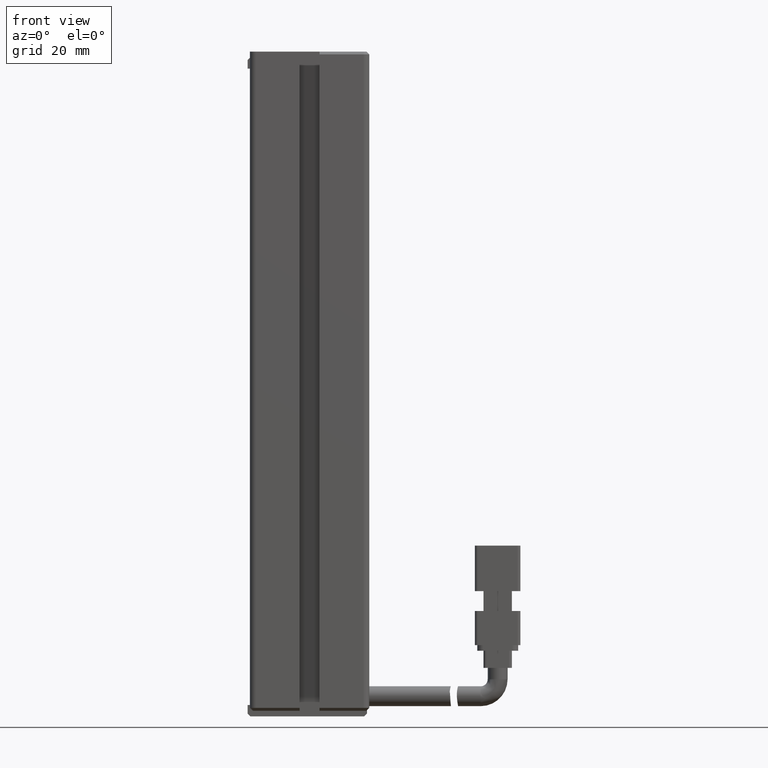
[diagram: clean part render]
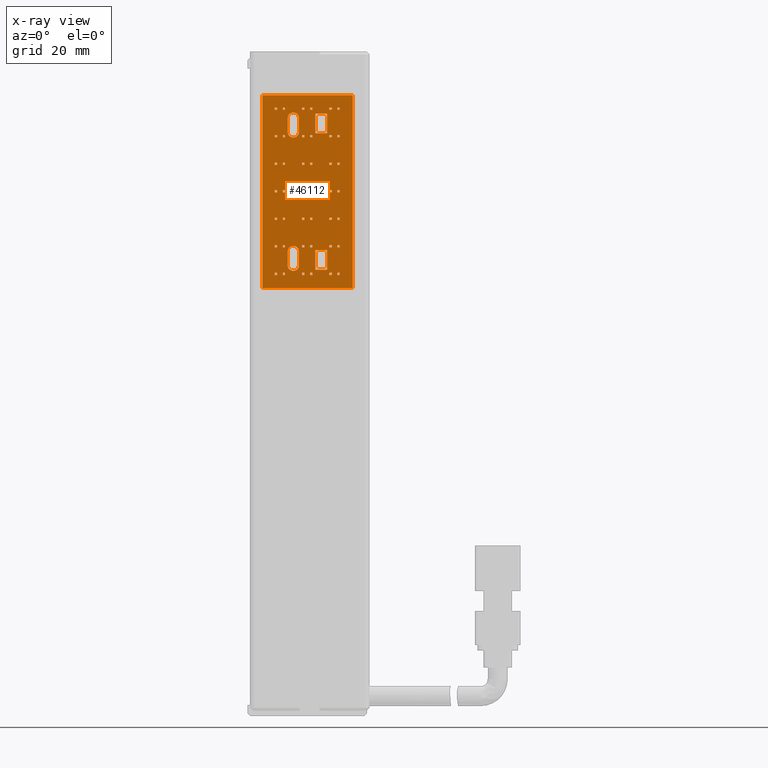
[diagram: x-ray — body ghosted, one internal face saturated and labeled with its STEP entity id]
A machine part, front view, then the same camera in x-ray: the body is ghosted and one INTERNAL B-rep face — a face not visible from any outside direction — is saturated and labeled: STEP entity #46112.
In plain terms, the highlighted planar face has unit normal (0, 1, 0).
Its self-contained STEP definition (entity closure, byte-faithful):
#9 = DIRECTION ( 'NONE',  ( 1.000000000000000000, 0.0000000000000000000, 0.0000000000000000000 ) ) ;
#65 = ORIENTED_EDGE ( 'NONE', *, *, #13145, .F. ) ;
#108 = LINE ( 'NONE', #35160, #48340 ) ;
#120 = VERTEX_POINT ( 'NONE', #64143 ) ;
#141 = ORIENTED_EDGE ( 'NONE', *, *, #60733, .T. ) ;
#166 = DIRECTION ( 'NONE',  ( -0.0000000000000000000, -0.0000000000000000000, -1.000000000000000000 ) ) ;
#277 = ORIENTED_EDGE ( 'NONE', *, *, #6045, .T. ) ;
#315 = ORIENTED_EDGE ( 'NONE', *, *, #49823, .T. ) ;
#351 = CARTESIAN_POINT ( 'NONE',  ( 44.80155439068577300, 22.89073232304836800, -80.67499999999999700 ) ) ;
#368 = CARTESIAN_POINT ( 'NONE',  ( 45.22769393487886400, 22.89073232304836800, -66.23863467651779000 ) ) ;
#412 = LINE ( 'NONE', #47058, #43362 ) ;
#444 = ORIENTED_EDGE ( 'NONE', *, *, #2410, .T. ) ;
#549 = LINE ( 'NONE', #15265, #71440 ) ;
#558 = ORIENTED_EDGE ( 'NONE', *, *, #3341, .F. ) ;
#564 = LINE ( 'NONE', #53743, #4959 ) ;
#575 = LINE ( 'NONE', #36486, #32113 ) ;
#622 = DIRECTION ( 'NONE',  ( 1.000000000000000000, 0.0000000000000000000, 0.0000000000000000000 ) ) ;
#632 = VECTOR ( 'NONE', #8688, 1000.000000000000000 ) ;
#645 = FACE_BOUND ( 'NONE', #23183, .T. ) ;
#673 = CARTESIAN_POINT ( 'NONE',  ( 40.97537974683542900, 22.89073232304836800, -80.39800676100746600 ) ) ;
#682 = VERTEX_POINT ( 'NONE', #53931 ) ;
#840 = CARTESIAN_POINT ( 'NONE',  ( 37.01264745350639600, 22.89073232304836800, -80.39800676100746600 ) ) ;
#849 = CARTESIAN_POINT ( 'NONE',  ( 37.01264745350639600, 22.89073232304836800, -65.84800676100746800 ) ) ;
#882 = CARTESIAN_POINT ( 'NONE',  ( 45.22769393487886400, 22.89073232304836800, -80.39800676100746600 ) ) ;
#930 = VECTOR ( 'NONE', #51509, 1000.000000000000000 ) ;
#954 = VECTOR ( 'NONE', #40789, 1000.000000000000000 ) ;
#1012 = CARTESIAN_POINT ( 'NONE',  ( 45.22769393487886400, 22.89073232304836800, -75.54800676100745700 ) ) ;
#1016 = DIRECTION ( 'NONE',  ( 0.0000000000000000000, 0.0000000000000000000, 1.000000000000000000 ) ) ;
#1022 = LINE ( 'NONE', #12415, #45746 ) ;
#1080 = CARTESIAN_POINT ( 'NONE',  ( 40.42769393487886000, 22.89073232304836800, -80.67499999999999700 ) ) ;
#1289 = LINE ( 'NONE', #71347, #54780 ) ;
#1290 = LINE ( 'NONE', #12108, #8244 ) ;
#1305 = CARTESIAN_POINT ( 'NONE',  ( 40.42769393487886000, 22.89073232304836800, -80.67499999999999700 ) ) ;
#1323 = VECTOR ( 'NONE', #47070, 1000.000000000000000 ) ;
#1378 = VERTEX_POINT ( 'NONE', #46588 ) ;
#1389 = CARTESIAN_POINT ( 'NONE',  ( 40.97537974683542900, 22.89073232304836800, -90.09800676100745400 ) ) ;
#1410 = CARTESIAN_POINT ( 'NONE',  ( 44.42122659865893300, 22.89073232304836800, -70.36959326776553800 ) ) ;
#1454 = VECTOR ( 'NONE', #33292, 1000.000000000000000 ) ;
#1469 = VERTEX_POINT ( 'NONE', #37761 ) ;
#1580 = CARTESIAN_POINT ( 'NONE',  ( 45.22769393487886400, 22.89073232304836800, -71.08863467651779900 ) ) ;
#1587 = CARTESIAN_POINT ( 'NONE',  ( 40.42769393487886000, 22.89073232304836800, -80.78863467651778800 ) ) ;
#1619 = ORIENTED_EDGE ( 'NONE', *, *, #69337, .T. ) ;
#1625 = DIRECTION ( 'NONE',  ( 1.000000000000000000, 0.0000000000000000000, 0.0000000000000000000 ) ) ;
#1723 = ORIENTED_EDGE ( 'NONE', *, *, #26383, .T. ) ;
#1834 = VECTOR ( 'NONE', #31402, 1000.000000000000000 ) ;
#1868 = VECTOR ( 'NONE', #54747, 1000.000000000000000 ) ;
#1897 = CARTESIAN_POINT ( 'NONE',  ( 40.97537974683542900, 22.89073232304836800, -94.94800676100744900 ) ) ;
#1907 = CARTESIAN_POINT ( 'NONE',  ( 46.61264745350639800, 22.89073232304836800, -95.33863467651778500 ) ) ;
#1923 = VECTOR ( 'NONE', #12453, 1000.000000000000000 ) ;
#1971 = VECTOR ( 'NONE', #71036, 1000.000000000000000 ) ;
#2043 = VERTEX_POINT ( 'NONE', #11980 ) ;
#2048 = DIRECTION ( 'NONE',  ( 1.000000000000000000, 0.0000000000000000000, 0.0000000000000000000 ) ) ;
#2083 = DIRECTION ( 'NONE',  ( 0.0000000000000000000, -1.000000000000000000, 0.0000000000000000000 ) ) ;
#2171 = VECTOR ( 'NONE', #70051, 1000.000000000000000 ) ;
#2226 = EDGE_LOOP ( 'NONE', ( #57208, #40902, #15120, #69203 ) ) ;
#2341 = CARTESIAN_POINT ( 'NONE',  ( 41.81264745350640100, 22.89073232304836800, -85.63863467651779600 ) ) ;
#2400 = FACE_BOUND ( 'NONE', #53727, .T. ) ;
#2407 = CARTESIAN_POINT ( 'NONE',  ( 36.62201953799606700, 22.89073232304836800, -94.94800676100744900 ) ) ;
#2410 = EDGE_CURVE ( 'NONE', #30398, #56803, #23702, .T. ) ;
#2411 = EDGE_CURVE ( 'NONE', #55211, #21824, #63148, .T. ) ;
#2412 = DIRECTION ( 'NONE',  ( -0.0000000000000000000, -0.0000000000000000000, -1.000000000000000000 ) ) ;
#2458 = CARTESIAN_POINT ( 'NONE',  ( 37.01264745350639600, 22.89073232304836800, -80.67499999999999700 ) ) ;
#2464 = CARTESIAN_POINT ( 'NONE',  ( 44.80155439068577300, 22.89073232304836800, -80.78863467651778800 ) ) ;
#2465 = ORIENTED_EDGE ( 'NONE', *, *, #36095, .T. ) ;
#2472 = VECTOR ( 'NONE', #7342, 1000.000000000000000 ) ;
#2484 = VERTEX_POINT ( 'NONE', #60009 ) ;
#2790 = CARTESIAN_POINT ( 'NONE',  ( 44.80155439068577300, 22.89073232304836800, -80.67499999999999700 ) ) ;
#2819 = ORIENTED_EDGE ( 'NONE', *, *, #25806, .T. ) ;
#2828 = ORIENTED_EDGE ( 'NONE', *, *, #70644, .T. ) ;
#2924 = EDGE_LOOP ( 'NONE', ( #63256, #18713, #315, #26208 ) ) ;
#2928 = DIRECTION ( 'NONE',  ( 1.000000000000000000, 0.0000000000000000000, 0.0000000000000000000 ) ) ;
#2944 = VERTEX_POINT ( 'NONE', #42601 ) ;
#2989 = VERTEX_POINT ( 'NONE', #52878 ) ;
#3076 = LINE ( 'NONE', #7500, #10856 ) ;
#3114 = EDGE_CURVE ( 'NONE', #15117, #46664, #59550, .T. ) ;
#3140 = VERTEX_POINT ( 'NONE', #55299 ) ;
#3203 = DIRECTION ( 'NONE',  ( 0.0000000000000000000, 0.0000000000000000000, 1.000000000000000000 ) ) ;
#3210 = CARTESIAN_POINT ( 'NONE',  ( 41.81264745350640100, 22.89073232304836800, -66.23863467651779000 ) ) ;
#3236 = FACE_BOUND ( 'NONE', #30060, .T. ) ;
#3248 = CARTESIAN_POINT ( 'NONE',  ( 36.62201953799606700, 22.89073232304836800, -75.54800676100745700 ) ) ;
#3341 = EDGE_CURVE ( 'NONE', #58985, #2944, #58720, .T. ) ;
#3402 = CARTESIAN_POINT ( 'NONE',  ( 46.22201953799606900, 22.89073232304836800, -85.24800676100744600 ) ) ;
#3411 = DIRECTION ( 'NONE',  ( 1.000000000000000000, 0.0000000000000000000, 0.0000000000000000000 ) ) ;
#3448 = CARTESIAN_POINT ( 'NONE',  ( 36.62201953799606700, 22.89073232304836800, -85.24800676100744600 ) ) ;
#3462 = VERTEX_POINT ( 'NONE', #5908 ) ;
#3579 = DIRECTION ( 'NONE',  ( 0.0000000000000000000, 0.0000000000000000000, 1.000000000000000000 ) ) ;
#3594 = VECTOR ( 'NONE', #55128, 1000.000000000000000 ) ;
#3609 = DIRECTION ( 'NONE',  ( 0.0000000000000000000, 0.0000000000000000000, 1.000000000000000000 ) ) ;
#3620 = VECTOR ( 'NONE', #14707, 1000.000000000000000 ) ;
#3665 = EDGE_CURVE ( 'NONE', #60362, #23861, #43725, .T. ) ;
#3759 = VECTOR ( 'NONE', #13718, 1000.000000000000000 ) ;
#3774 = CARTESIAN_POINT ( 'NONE',  ( 40.42769393487886000, 22.89073232304836800, -80.67499999999999700 ) ) ;
#3949 = CARTESIAN_POINT ( 'NONE',  ( 42.35350239876448300, 22.89073232304836800, -70.36959326776553800 ) ) ;
#3974 = VECTOR ( 'NONE', #70548, 1000.000000000000000 ) ;
#3976 = VECTOR ( 'NONE', #35146, 1000.000000000000000 ) ;
#3985 = VECTOR ( 'NONE', #48843, 1000.000000000000000 ) ;
#4042 = EDGE_LOOP ( 'NONE', ( #6153, #5377, #36216, #6087, #15695 ) ) ;
#4085 = VECTOR ( 'NONE', #22884, 1000.000000000000000 ) ;
#4110 = CIRCLE ( 'NONE', #65213, 0.9918260769590930800 ) ;
#4252 = CARTESIAN_POINT ( 'NONE',  ( 40.00155439068577600, 22.89073232304836800, -80.67499999999999700 ) ) ;
#4287 = EDGE_CURVE ( 'NONE', #39604, #31160, #1289, .T. ) ;
#4326 = VECTOR ( 'NONE', #61464, 1000.000000000000000 ) ;
#4334 = LINE ( 'NONE', #36545, #10415 ) ;
#4489 = EDGE_CURVE ( 'NONE', #61333, #38949, #45104, .T. ) ;
#4509 = CARTESIAN_POINT ( 'NONE',  ( 45.22769393487886400, 22.89073232304836800, -70.69800676100746300 ) ) ;
#4545 = LINE ( 'NONE', #21047, #48406 ) ;
#4547 = CARTESIAN_POINT ( 'NONE',  ( 46.22201953799606900, 22.89073232304836800, -80.67499999999999700 ) ) ;
#4567 = ORIENTED_EDGE ( 'NONE', *, *, #44568, .T. ) ;
#4605 = EDGE_CURVE ( 'NONE', #46664, #22012, #65921, .T. ) ;
#4697 = EDGE_CURVE ( 'NONE', #16416, #15834, #48562, .T. ) ;
#4716 = VECTOR ( 'NONE', #5852, 1000.000000000000000 ) ;
#4795 = CARTESIAN_POINT ( 'NONE',  ( 38.46881530718247400, 22.89073232304836800, -70.14309345198834900 ) ) ;
#4801 = LINE ( 'NONE', #46831, #1323 ) ;
#4803 = VECTOR ( 'NONE', #35916, 1000.000000000000000 ) ;
#4894 = DIRECTION ( 'NONE',  ( -0.0000000000000000000, -0.0000000000000000000, -1.000000000000000000 ) ) ;
#4913 = LINE ( 'NONE', #3949, #62708 ) ;
#4954 = FACE_BOUND ( 'NONE', #43236, .T. ) ;
#4959 = VECTOR ( 'NONE', #71011, 1000.000000000000000 ) ;
#4962 = CARTESIAN_POINT ( 'NONE',  ( 37.01264745350639600, 22.89073232304836800, -90.48863467651779000 ) ) ;
#4969 = DIRECTION ( 'NONE',  ( -0.0000000000000000000, -0.0000000000000000000, -1.000000000000000000 ) ) ;
#5069 = CARTESIAN_POINT ( 'NONE',  ( 40.00155439068577600, 22.89073232304836800, -90.09800676100745400 ) ) ;
#5075 = DIRECTION ( 'NONE',  ( 0.0000000000000000000, 0.0000000000000000000, 1.000000000000000000 ) ) ;
#5102 = CARTESIAN_POINT ( 'NONE',  ( 40.97537974683542900, 22.89073232304836800, -85.24800676100744600 ) ) ;
#5146 = EDGE_CURVE ( 'NONE', #34279, #120, #40456, .T. ) ;
#5171 = ORIENTED_EDGE ( 'NONE', *, *, #54681, .T. ) ;
#5231 = EDGE_CURVE ( 'NONE', #55211, #40934, #15821, .T. ) ;
#5255 = VECTOR ( 'NONE', #18601, 1000.000000000000000 ) ;
#5303 = LINE ( 'NONE', #26226, #35952 ) ;
#5328 = VECTOR ( 'NONE', #36340, 1000.000000000000000 ) ;
#5355 = CARTESIAN_POINT ( 'NONE',  ( 40.00155439068577600, 22.89073232304836800, -71.08863467651779900 ) ) ;
#5377 = ORIENTED_EDGE ( 'NONE', *, *, #4605, .F. ) ;
#5461 = VECTOR ( 'NONE', #27398, 1000.000000000000000 ) ;
#5574 = EDGE_CURVE ( 'NONE', #11061, #40688, #10470, .T. ) ;
#5772 = VERTEX_POINT ( 'NONE', #25922 ) ;
#5852 = DIRECTION ( 'NONE',  ( -1.000000000000000000, -0.0000000000000000000, -0.0000000000000000000 ) ) ;
#5908 = CARTESIAN_POINT ( 'NONE',  ( 35.62769393487886300, 22.89073232304836800, -80.78863467651778800 ) ) ;
#5965 = EDGE_CURVE ( 'NONE', #2989, #70034, #39307, .T. ) ;
#5982 = CARTESIAN_POINT ( 'NONE',  ( 40.97537974683542900, 22.89073232304836800, -90.09800676100745400 ) ) ;
#6045 = EDGE_CURVE ( 'NONE', #18228, #72576, #33170, .T. ) ;
#6063 = CARTESIAN_POINT ( 'NONE',  ( 40.97537974683542900, 22.89073232304836800, -94.94800676100744900 ) ) ;
#6087 = ORIENTED_EDGE ( 'NONE', *, *, #20372, .F. ) ;
#6153 = ORIENTED_EDGE ( 'NONE', *, *, #37583, .F. ) ;
#6167 = LINE ( 'NONE', #18417, #43040 ) ;
#6211 = CARTESIAN_POINT ( 'NONE',  ( 46.22201953799606900, 22.89073232304836800, -80.67499999999999700 ) ) ;
#6223 = ORIENTED_EDGE ( 'NONE', *, *, #22605, .T. ) ;
#6240 = ORIENTED_EDGE ( 'NONE', *, *, #19159, .T. ) ;
#6326 = DIRECTION ( 'NONE',  ( 1.000000000000000000, 0.0000000000000000000, 0.0000000000000000000 ) ) ;
#6381 = CARTESIAN_POINT ( 'NONE',  ( 40.97537974683542900, 22.89073232304836800, -65.84800676100746800 ) ) ;
#6505 = LINE ( 'NONE', #33551, #4716 ) ;
#6522 = CARTESIAN_POINT ( 'NONE',  ( 45.22769393487886400, 22.89073232304836800, -80.78863467651778800 ) ) ;
#6538 = EDGE_CURVE ( 'NONE', #682, #15834, #44400, .T. ) ;
#6609 = ORIENTED_EDGE ( 'NONE', *, *, #32869, .T. ) ;
#6681 = VERTEX_POINT ( 'NONE', #43000 ) ;
#6719 = FACE_BOUND ( 'NONE', #39382, .T. ) ;
#6763 = LINE ( 'NONE', #47275, #40110 ) ;
#6769 = VECTOR ( 'NONE', #2412, 1000.000000000000000 ) ;
#6774 = EDGE_CURVE ( 'NONE', #43306, #61705, #48700, .T. ) ;
#6954 = DIRECTION ( 'NONE',  ( 0.0000000000000000000, 0.0000000000000000000, 1.000000000000000000 ) ) ;
#7125 = DIRECTION ( 'NONE',  ( 0.0000000000000000000, 0.0000000000000000000, 1.000000000000000000 ) ) ;
#7171 = CARTESIAN_POINT ( 'NONE',  ( 40.00155439068577600, 22.89073232304836800, -66.23863467651779000 ) ) ;
#7244 = ORIENTED_EDGE ( 'NONE', *, *, #42213, .T. ) ;
#7269 = CARTESIAN_POINT ( 'NONE',  ( 46.22201953799606900, 22.89073232304836800, -90.48863467651779000 ) ) ;
#7303 = EDGE_LOOP ( 'NONE', ( #6223, #66660, #42048, #24367 ) ) ;
#7342 = DIRECTION ( 'NONE',  ( 1.000000000000000000, 0.0000000000000000000, 0.0000000000000000000 ) ) ;
#7426 = DIRECTION ( 'NONE',  ( 1.000000000000000000, 0.0000000000000000000, 0.0000000000000000000 ) ) ;
#7428 = DIRECTION ( 'NONE',  ( 1.000000000000000000, 0.0000000000000000000, 0.0000000000000000000 ) ) ;
#7467 = LINE ( 'NONE', #56873, #61765 ) ;
#7500 = CARTESIAN_POINT ( 'NONE',  ( 40.97537974683542900, 22.89073232304836800, -75.54800676100745700 ) ) ;
#7539 = ORIENTED_EDGE ( 'NONE', *, *, #71739, .T. ) ;
#7574 = LINE ( 'NONE', #54259, #55879 ) ;
#7590 = VECTOR ( 'NONE', #3609, 1000.000000000000000 ) ;
#7646 = LINE ( 'NONE', #20351, #26895 ) ;
#7682 = DIRECTION ( 'NONE',  ( 1.000000000000000000, 0.0000000000000000000, 0.0000000000000000000 ) ) ;
#7728 = VECTOR ( 'NONE', #52589, 1000.000000000000000 ) ;
#7754 = VERTEX_POINT ( 'NONE', #3402 ) ;
#7812 = DIRECTION ( 'NONE',  ( 1.000000000000000000, 0.0000000000000000000, 0.0000000000000000000 ) ) ;
#7891 = VECTOR ( 'NONE', #32510, 1000.000000000000000 ) ;
#8046 = ORIENTED_EDGE ( 'NONE', *, *, #33385, .F. ) ;
#8120 = CARTESIAN_POINT ( 'NONE',  ( 37.01264745350639600, 22.89073232304836800, -70.69800676100746300 ) ) ;
#8122 = ORIENTED_EDGE ( 'NONE', *, *, #51389, .T. ) ;
#8244 = VECTOR ( 'NONE', #51396, 1000.000000000000000 ) ;
#8322 = ORIENTED_EDGE ( 'NONE', *, *, #10692, .T. ) ;
#8323 = DIRECTION ( 'NONE',  ( -0.0000000000000000000, -0.0000000000000000000, 1.000000000000000000 ) ) ;
#8330 = DIRECTION ( 'NONE',  ( 0.0000000000000000000, 0.0000000000000000000, -1.000000000000000000 ) ) ;
#8390 = CARTESIAN_POINT ( 'NONE',  ( 41.81264745350640100, 22.89073232304836800, -80.67499999999999700 ) ) ;
#8412 = EDGE_CURVE ( 'NONE', #64935, #36947, #53709, .T. ) ;
#8433 = EDGE_CURVE ( 'NONE', #64914, #39201, #21144, .T. ) ;
#8560 = CARTESIAN_POINT ( 'NONE',  ( 40.97537974683542900, 22.89073232304836800, -65.84800676100746800 ) ) ;
#8644 = LINE ( 'NONE', #22240, #4326 ) ;
#8688 = DIRECTION ( 'NONE',  ( -0.0000000000000000000, -0.0000000000000000000, -1.000000000000000000 ) ) ;
#8759 = EDGE_CURVE ( 'NONE', #71867, #37610, #6167, .T. ) ;
#8777 = EDGE_CURVE ( 'NONE', #38533, #18228, #17502, .T. ) ;
#8891 = LINE ( 'NONE', #45863, #58850 ) ;
#8916 = LINE ( 'NONE', #9321, #66725 ) ;
#8974 = LINE ( 'NONE', #42006, #3759 ) ;
#9011 = LINE ( 'NONE', #19665, #22114 ) ;
#9079 = DIRECTION ( 'NONE',  ( -0.0000000000000000000, -0.0000000000000000000, -1.000000000000000000 ) ) ;
#9114 = EDGE_CURVE ( 'NONE', #59675, #19636, #8644, .T. ) ;
#9179 = CARTESIAN_POINT ( 'NONE',  ( 35.62769393487886300, 22.89073232304836800, -66.23863467651779000 ) ) ;
#9260 = CARTESIAN_POINT ( 'NONE',  ( 40.42769393487886000, 22.89073232304836800, -75.93863467651779300 ) ) ;
#9268 = CARTESIAN_POINT ( 'NONE',  ( 44.80155439068577300, 22.89073232304836800, -70.69800676100746300 ) ) ;
#9321 = CARTESIAN_POINT ( 'NONE',  ( 46.61264745350639800, 22.89073232304836800, -80.67499999999999700 ) ) ;
#9348 = FACE_BOUND ( 'NONE', #39707, .T. ) ;
#9373 = EDGE_CURVE ( 'NONE', #21824, #55060, #70740, .T. ) ;
#9462 = VECTOR ( 'NONE', #10007, 1000.000000000000000 ) ;
#9478 = CARTESIAN_POINT ( 'NONE',  ( 41.81264745350640100, 22.89073232304836800, -80.67499999999999700 ) ) ;
#9518 = DIRECTION ( 'NONE',  ( 1.000000000000000000, 0.0000000000000000000, 0.0000000000000000000 ) ) ;
#9527 = VECTOR ( 'NONE', #10555, 1000.000000000000000 ) ;
#9546 = CARTESIAN_POINT ( 'NONE',  ( 46.22201953799606900, 22.89073232304836800, -66.23863467651779000 ) ) ;
#9578 = ORIENTED_EDGE ( 'NONE', *, *, #16778, .T. ) ;
#9716 = VERTEX_POINT ( 'NONE', #49949 ) ;
#9726 = VECTOR ( 'NONE', #70708, 1000.000000000000000 ) ;
#9728 = ORIENTED_EDGE ( 'NONE', *, *, #24845, .T. ) ;
#9765 = CARTESIAN_POINT ( 'NONE',  ( 35.20155439068577200, 22.89073232304836800, -80.67499999999999700 ) ) ;
#9907 = EDGE_CURVE ( 'NONE', #24762, #18781, #68853, .T. ) ;
#9918 = VERTEX_POINT ( 'NONE', #63067 ) ;
#10007 = DIRECTION ( 'NONE',  ( 1.000000000000000000, 0.0000000000000000000, 0.0000000000000000000 ) ) ;
#10028 = LINE ( 'NONE', #37236, #17062 ) ;
#10072 = ORIENTED_EDGE ( 'NONE', *, *, #47389, .F. ) ;
#10109 = CARTESIAN_POINT ( 'NONE',  ( 37.47698923022338800, 22.89073232304836800, -67.73645664760233800 ) ) ;
#10110 = ORIENTED_EDGE ( 'NONE', *, *, #12341, .T. ) ;
#10121 = DIRECTION ( 'NONE',  ( 1.000000000000000000, 0.0000000000000000000, 0.0000000000000000000 ) ) ;
#10132 = EDGE_CURVE ( 'NONE', #30734, #12133, #32120, .T. ) ;
#10216 = LINE ( 'NONE', #1389, #66286 ) ;
#10251 = EDGE_CURVE ( 'NONE', #58737, #64935, #20620, .T. ) ;
#10269 = EDGE_CURVE ( 'NONE', #40725, #53531, #68791, .T. ) ;
#10312 = VERTEX_POINT ( 'NONE', #368 ) ;
#10334 = CARTESIAN_POINT ( 'NONE',  ( 38.46881530718247400, 22.89073232304836800, -71.13491952894744900 ) ) ;
#10412 = DIRECTION ( 'NONE',  ( -0.0000000000000000000, -0.0000000000000000000, -1.000000000000000000 ) ) ;
#10415 = VECTOR ( 'NONE', #42207, 1000.000000000000000 ) ;
#10426 = LINE ( 'NONE', #30555, #51602 ) ;
#10470 = LINE ( 'NONE', #1305, #930 ) ;
#10555 = DIRECTION ( 'NONE',  ( 1.000000000000000000, 0.0000000000000000000, 0.0000000000000000000 ) ) ;
#10692 = EDGE_CURVE ( 'NONE', #18107, #38949, #60773, .T. ) ;
#10796 = CARTESIAN_POINT ( 'NONE',  ( 37.47698923022338800, 22.89073232304836800, -67.73645664760233800 ) ) ;
#10856 = VECTOR ( 'NONE', #51407, 1000.000000000000000 ) ;
#10866 = EDGE_CURVE ( 'NONE', #5772, #50981, #71196, .T. ) ;
#10874 = DIRECTION ( 'NONE',  ( -0.0000000000000000000, -0.0000000000000000000, -1.000000000000000000 ) ) ;
#10946 = CARTESIAN_POINT ( 'NONE',  ( 40.97537974683542900, 22.89073232304836800, -65.84800676100746800 ) ) ;
#10963 = CARTESIAN_POINT ( 'NONE',  ( 41.81264745350640100, 22.89073232304836800, -70.69800676100746300 ) ) ;
#10968 = CARTESIAN_POINT ( 'NONE',  ( 45.22769393487886400, 22.89073232304836800, -90.48863467651779000 ) ) ;
#11003 = EDGE_CURVE ( 'NONE', #66985, #12912, #53806, .T. ) ;
#11061 = VERTEX_POINT ( 'NONE', #13414 ) ;
#11071 = FACE_BOUND ( 'NONE', #45046, .T. ) ;
#11145 = CARTESIAN_POINT ( 'NONE',  ( 40.97537974683542900, 22.89073232304836800, -85.24800676100744600 ) ) ;
#11161 = CARTESIAN_POINT ( 'NONE',  ( 40.97537974683542900, 22.89073232304836800, -94.94800676100744900 ) ) ;
#11268 = EDGE_CURVE ( 'NONE', #18837, #11561, #12813, .T. ) ;
#11330 = LINE ( 'NONE', #24224, #30650 ) ;
#11355 = CARTESIAN_POINT ( 'NONE',  ( 38.46881530718247400, 22.89073232304836800, -93.61354335239765600 ) ) ;
#11486 = ORIENTED_EDGE ( 'NONE', *, *, #41153, .T. ) ;
#11517 = CARTESIAN_POINT ( 'NONE',  ( 45.22769393487886400, 22.89073232304836800, -71.08863467651779900 ) ) ;
#11519 = VERTEX_POINT ( 'NONE', #45218 ) ;
#11561 = VERTEX_POINT ( 'NONE', #53752 ) ;
#11624 = ORIENTED_EDGE ( 'NONE', *, *, #23749, .F. ) ;
#11792 = VERTEX_POINT ( 'NONE', #38794 ) ;
#11807 = CARTESIAN_POINT ( 'NONE',  ( 44.80155439068577300, 22.89073232304836800, -75.54800676100745700 ) ) ;
#11814 = VECTOR ( 'NONE', #49465, 1000.000000000000000 ) ;
#11896 = FACE_BOUND ( 'NONE', #66248, .T. ) ;
#11913 = CARTESIAN_POINT ( 'NONE',  ( 40.97537974683542900, 22.89073232304836800, -70.69800676100746300 ) ) ;
#11961 = EDGE_CURVE ( 'NONE', #60446, #23861, #7467, .T. ) ;
#11980 = CARTESIAN_POINT ( 'NONE',  ( 45.22769393487886400, 22.89073232304836800, -85.63863467651779600 ) ) ;
#12108 = CARTESIAN_POINT ( 'NONE',  ( 37.01264745350639600, 22.89073232304836800, -71.08863467651779900 ) ) ;
#12133 = VERTEX_POINT ( 'NONE', #42415 ) ;
#12235 = EDGE_LOOP ( 'NONE', ( #68153, #30347, #8322, #60187 ) ) ;
#12341 = EDGE_CURVE ( 'NONE', #64311, #63576, #38105, .T. ) ;
#12415 = CARTESIAN_POINT ( 'NONE',  ( 40.97537974683542900, 22.89073232304836800, -85.24800676100744600 ) ) ;
#12453 = DIRECTION ( 'NONE',  ( 0.0000000000000000000, 0.0000000000000000000, 1.000000000000000000 ) ) ;
#12483 = VECTOR ( 'NONE', #25414, 1000.000000000000000 ) ;
#12502 = EDGE_CURVE ( 'NONE', #35076, #3462, #14294, .T. ) ;
#12525 = ORIENTED_EDGE ( 'NONE', *, *, #72244, .F. ) ;
#12714 = CARTESIAN_POINT ( 'NONE',  ( 35.20155439068577200, 22.89073232304836800, -85.63863467651779600 ) ) ;
#12736 = ORIENTED_EDGE ( 'NONE', *, *, #63606, .T. ) ;
#12749 = CARTESIAN_POINT ( 'NONE',  ( 36.62201953799606700, 22.89073232304836800, -80.67499999999999700 ) ) ;
#12813 = LINE ( 'NONE', #23065, #18109 ) ;
#12853 = FACE_OUTER_BOUND ( 'NONE', #19995, .T. ) ;
#12912 = VERTEX_POINT ( 'NONE', #39332 ) ;
#12978 = VERTEX_POINT ( 'NONE', #1580 ) ;
#12995 = CARTESIAN_POINT ( 'NONE',  ( 41.42201953799607100, 22.89073232304836800, -75.93863467651779300 ) ) ;
#13014 = VERTEX_POINT ( 'NONE', #57679 ) ;
#13120 = CARTESIAN_POINT ( 'NONE',  ( 40.97537974683542900, 22.89073232304836800, -70.69800676100746300 ) ) ;
#13145 = EDGE_CURVE ( 'NONE', #23495, #27125, #27201, .T. ) ;
#13203 = ORIENTED_EDGE ( 'NONE', *, *, #26684, .T. ) ;
#13212 = CARTESIAN_POINT ( 'NONE',  ( 46.61264745350639800, 22.89073232304836800, -66.23863467651779000 ) ) ;
#13273 = EDGE_LOOP ( 'NONE', ( #19183, #59625, #33217, #20113 ) ) ;
#13401 = EDGE_LOOP ( 'NONE', ( #59303, #46268, #40095, #24172 ) ) ;
#13414 = CARTESIAN_POINT ( 'NONE',  ( 40.42769393487886000, 22.89073232304836800, -65.84800676100746800 ) ) ;
#13417 = VECTOR ( 'NONE', #60438, 1000.000000000000000 ) ;
#13442 = LINE ( 'NONE', #48014, #35458 ) ;
#13597 = LINE ( 'NONE', #72337, #11814 ) ;
#13613 = CARTESIAN_POINT ( 'NONE',  ( 35.62769393487886300, 22.89073232304836800, -80.67499999999999700 ) ) ;
#13614 = CARTESIAN_POINT ( 'NONE',  ( 46.22201953799606900, 22.89073232304836800, -75.54800676100745700 ) ) ;
#13627 = ORIENTED_EDGE ( 'NONE', *, *, #4287, .F. ) ;
#13636 = ORIENTED_EDGE ( 'NONE', *, *, #57786, .T. ) ;
#13642 = CARTESIAN_POINT ( 'NONE',  ( 45.22769393487886400, 22.89073232304836800, -80.67499999999999700 ) ) ;
#13646 = VECTOR ( 'NONE', #32446, 1000.000000000000000 ) ;
#13708 = CARTESIAN_POINT ( 'NONE',  ( 45.22769393487886400, 22.89073232304836800, -80.67499999999999700 ) ) ;
#13712 = CARTESIAN_POINT ( 'NONE',  ( 35.62769393487886300, 22.89073232304836800, -85.63863467651779600 ) ) ;
#13718 = DIRECTION ( 'NONE',  ( 0.0000000000000000000, 0.0000000000000000000, 1.000000000000000000 ) ) ;
#14024 = DIRECTION ( 'NONE',  ( -0.0000000000000000000, -0.0000000000000000000, -1.000000000000000000 ) ) ;
#14114 = VERTEX_POINT ( 'NONE', #61451 ) ;
#14263 = ORIENTED_EDGE ( 'NONE', *, *, #20487, .F. ) ;
#14287 = ORIENTED_EDGE ( 'NONE', *, *, #45240, .F. ) ;
#14294 = LINE ( 'NONE', #34231, #57361 ) ;
#14405 = DIRECTION ( 'NONE',  ( 1.000000000000000000, 0.0000000000000000000, 0.0000000000000000000 ) ) ;
#14460 = LINE ( 'NONE', #70342, #18855 ) ;
#14478 = VERTEX_POINT ( 'NONE', #30827 ) ;
#14579 = FACE_BOUND ( 'NONE', #7303, .T. ) ;
#14706 = DIRECTION ( 'NONE',  ( 1.000000000000000000, 0.0000000000000000000, 0.0000000000000000000 ) ) ;
#14707 = DIRECTION ( 'NONE',  ( -0.0000000000000000000, -0.0000000000000000000, -1.000000000000000000 ) ) ;
#14724 = VECTOR ( 'NONE', #22941, 1000.000000000000000 ) ;
#14740 = CARTESIAN_POINT ( 'NONE',  ( 37.01264745350639600, 22.89073232304836800, -80.67499999999999700 ) ) ;
#14807 = LINE ( 'NONE', #41009, #49998 ) ;
#14941 = VECTOR ( 'NONE', #38033, 1000.000000000000000 ) ;
#14952 = EDGE_CURVE ( 'NONE', #48093, #21983, #65471, .T. ) ;
#14960 = CARTESIAN_POINT ( 'NONE',  ( 37.47698923022338800, 22.89073232304836800, -70.14309345198834900 ) ) ;
#15112 = EDGE_LOOP ( 'NONE', ( #25871, #7539, #18365, #69196 ) ) ;
#15115 = DIRECTION ( 'NONE',  ( 0.0000000000000000000, 0.0000000000000000000, 1.000000000000000000 ) ) ;
#15117 = VERTEX_POINT ( 'NONE', #10334 ) ;
#15120 = ORIENTED_EDGE ( 'NONE', *, *, #41490, .T. ) ;
#15153 = CARTESIAN_POINT ( 'NONE',  ( 40.97537974683542900, 22.89073232304836800, -75.54800676100745700 ) ) ;
#15223 = VECTOR ( 'NONE', #33127, 1000.000000000000000 ) ;
#15229 = EDGE_CURVE ( 'NONE', #45820, #1469, #65483, .T. ) ;
#15244 = VERTEX_POINT ( 'NONE', #43774 ) ;
#15265 = CARTESIAN_POINT ( 'NONE',  ( 35.62769393487886300, 22.89073232304836800, -80.67499999999999700 ) ) ;
#15353 = FACE_BOUND ( 'NONE', #27409, .T. ) ;
#15400 = EDGE_CURVE ( 'NONE', #67681, #21194, #4110, .T. ) ;
#15599 = EDGE_CURVE ( 'NONE', #38325, #67681, #564, .T. ) ;
#15615 = EDGE_LOOP ( 'NONE', ( #70142, #52540, #20795, #71514, #18793 ) ) ;
#15695 = ORIENTED_EDGE ( 'NONE', *, *, #65749, .F. ) ;
#15716 = VERTEX_POINT ( 'NONE', #15911 ) ;
#15719 = CARTESIAN_POINT ( 'NONE',  ( 40.97537974683542900, 22.89073232304836800, -90.09800676100745400 ) ) ;
#15736 = VECTOR ( 'NONE', #9, 1000.000000000000000 ) ;
#15793 = CARTESIAN_POINT ( 'NONE',  ( 40.00155439068577600, 22.89073232304836800, -85.63863467651779600 ) ) ;
#15821 = LINE ( 'NONE', #43254, #43980 ) ;
#15834 = VERTEX_POINT ( 'NONE', #61695 ) ;
#15863 = ORIENTED_EDGE ( 'NONE', *, *, #68283, .F. ) ;
#15866 = CARTESIAN_POINT ( 'NONE',  ( 38.46881530718247400, 22.89073232304836800, -70.14309345198834900 ) ) ;
#15887 = VECTOR ( 'NONE', #52579, 1000.000000000000000 ) ;
#15911 = CARTESIAN_POINT ( 'NONE',  ( 40.42769393487886000, 22.89073232304836800, -75.93863467651779300 ) ) ;
#16005 = LINE ( 'NONE', #1587, #26549 ) ;
#16030 = ORIENTED_EDGE ( 'NONE', *, *, #51116, .T. ) ;
#16060 = VERTEX_POINT ( 'NONE', #3210 ) ;
#16151 = CARTESIAN_POINT ( 'NONE',  ( 41.42201953799607100, 22.89073232304836800, -85.24800676100744600 ) ) ;
#16169 = EDGE_CURVE ( 'NONE', #45820, #3462, #71251, .T. ) ;
#16182 = CARTESIAN_POINT ( 'NONE',  ( 46.61264745350639800, 22.89073232304836800, -90.48863467651779000 ) ) ;
#16186 = EDGE_CURVE ( 'NONE', #40825, #72145, #37206, .T. ) ;
#16244 = PLANE ( 'NONE',  #67652 ) ;
#16335 = DIRECTION ( 'NONE',  ( 1.000000000000000000, 0.0000000000000000000, 0.0000000000000000000 ) ) ;
#16338 = DIRECTION ( 'NONE',  ( 1.000000000000000000, 0.0000000000000000000, 0.0000000000000000000 ) ) ;
#16416 = VERTEX_POINT ( 'NONE', #29232 ) ;
#16470 = VECTOR ( 'NONE', #50338, 1000.000000000000000 ) ;
#16501 = VECTOR ( 'NONE', #56469, 1000.000000000000000 ) ;
#16693 = CARTESIAN_POINT ( 'NONE',  ( 42.35350239876448300, 22.89073232304836800, -66.95286079072890600 ) ) ;
#16738 = EDGE_LOOP ( 'NONE', ( #50239, #21173, #23123, #13627 ) ) ;
#16744 = ORIENTED_EDGE ( 'NONE', *, *, #54081, .T. ) ;
#16778 = EDGE_CURVE ( 'NONE', #69735, #19814, #24628, .T. ) ;
#16861 = CARTESIAN_POINT ( 'NONE',  ( 40.97537974683542900, 22.89073232304836800, -65.84800676100746800 ) ) ;
#16881 = ORIENTED_EDGE ( 'NONE', *, *, #70839, .T. ) ;
#16982 = DIRECTION ( 'NONE',  ( 0.0000000000000000000, 0.0000000000000000000, -1.000000000000000000 ) ) ;
#16996 = VECTOR ( 'NONE', #39526, 1000.000000000000000 ) ;
#17008 = CARTESIAN_POINT ( 'NONE',  ( 44.80155439068577300, 22.89073232304836800, -85.63863467651779600 ) ) ;
#17019 = VECTOR ( 'NONE', #27695, 1000.000000000000000 ) ;
#17062 = VECTOR ( 'NONE', #31294, 1000.000000000000000 ) ;
#17073 = ORIENTED_EDGE ( 'NONE', *, *, #59475, .T. ) ;
#17338 = DIRECTION ( 'NONE',  ( 1.000000000000000000, 0.0000000000000000000, 0.0000000000000000000 ) ) ;
#17391 = EDGE_LOOP ( 'NONE', ( #66921, #42970, #16881, #69243 ) ) ;
#17404 = VERTEX_POINT ( 'NONE', #66491 ) ;
#17485 = CARTESIAN_POINT ( 'NONE',  ( 35.20155439068577200, 22.89073232304836800, -85.24800676100744600 ) ) ;
#17502 = LINE ( 'NONE', #45950, #18425 ) ;
#17812 = ORIENTED_EDGE ( 'NONE', *, *, #8412, .T. ) ;
#17857 = LINE ( 'NONE', #66990, #48620 ) ;
#17875 = VERTEX_POINT ( 'NONE', #43527 ) ;
#17990 = EDGE_CURVE ( 'NONE', #48797, #19636, #34012, .T. ) ;
#18033 = ORIENTED_EDGE ( 'NONE', *, *, #28968, .F. ) ;
#18093 = CARTESIAN_POINT ( 'NONE',  ( 42.35350239876448300, 22.89073232304836800, -94.39713920927108900 ) ) ;
#18107 = VERTEX_POINT ( 'NONE', #840 ) ;
#18109 = VECTOR ( 'NONE', #28254, 1000.000000000000000 ) ;
#18124 = ORIENTED_EDGE ( 'NONE', *, *, #14952, .T. ) ;
#18129 = CARTESIAN_POINT ( 'NONE',  ( 46.22201953799606900, 22.89073232304836800, -65.84800676100746800 ) ) ;
#18137 = CARTESIAN_POINT ( 'NONE',  ( 40.42769393487886000, 22.89073232304836800, -90.48863467651779000 ) ) ;
#18188 = VERTEX_POINT ( 'NONE', #13212 ) ;
#18228 = VERTEX_POINT ( 'NONE', #63930 ) ;
#18323 = EDGE_CURVE ( 'NONE', #23553, #55922, #4913, .T. ) ;
#18365 = ORIENTED_EDGE ( 'NONE', *, *, #54417, .T. ) ;
#18417 = CARTESIAN_POINT ( 'NONE',  ( 41.81264745350640100, 22.89073232304836800, -80.78863467651778800 ) ) ;
#18425 = VECTOR ( 'NONE', #52776, 1000.000000000000000 ) ;
#18453 = DIRECTION ( 'NONE',  ( 1.000000000000000000, 0.0000000000000000000, 0.0000000000000000000 ) ) ;
#18455 = LINE ( 'NONE', #20510, #61391 ) ;
#18495 = VERTEX_POINT ( 'NONE', #10963 ) ;
#18601 = DIRECTION ( 'NONE',  ( -0.0000000000000000000, -0.0000000000000000000, -1.000000000000000000 ) ) ;
#18668 = VECTOR ( 'NONE', #35059, 1000.000000000000000 ) ;
#18675 = CARTESIAN_POINT ( 'NONE',  ( 40.97537974683542900, 22.89073232304836800, -80.39800676100746600 ) ) ;
#18685 = CARTESIAN_POINT ( 'NONE',  ( 40.00155439068577600, 22.89073232304836800, -80.67499999999999700 ) ) ;
#18694 = LINE ( 'NONE', #61508, #61697 ) ;
#18713 = ORIENTED_EDGE ( 'NONE', *, *, #67083, .T. ) ;
#18781 = VERTEX_POINT ( 'NONE', #13614 ) ;
#18791 = CARTESIAN_POINT ( 'NONE',  ( 35.62769393487886300, 22.89073232304836800, -65.84800676100746800 ) ) ;
#18793 = ORIENTED_EDGE ( 'NONE', *, *, #43646, .F. ) ;
#18827 = CARTESIAN_POINT ( 'NONE',  ( 45.22769393487886400, 22.89073232304836800, -95.33863467651778500 ) ) ;
#18837 = VERTEX_POINT ( 'NONE', #36467 ) ;
#18842 = EDGE_CURVE ( 'NONE', #38661, #70137, #412, .T. ) ;
#18855 = VECTOR ( 'NONE', #53073, 1000.000000000000000 ) ;
#18880 = EDGE_CURVE ( 'NONE', #6681, #47018, #13442, .T. ) ;
#18914 = ORIENTED_EDGE ( 'NONE', *, *, #10132, .T. ) ;
#18944 = CARTESIAN_POINT ( 'NONE',  ( 44.80155439068577300, 22.89073232304836800, -95.33863467651778500 ) ) ;
#19018 = ORIENTED_EDGE ( 'NONE', *, *, #45237, .F. ) ;
#19053 = VECTOR ( 'NONE', #22960, 1000.000000000000000 ) ;
#19063 = EDGE_CURVE ( 'NONE', #39604, #30340, #35391, .T. ) ;
#19065 = VERTEX_POINT ( 'NONE', #33658 ) ;
#19078 = CARTESIAN_POINT ( 'NONE',  ( 37.01264745350639600, 22.89073232304836800, -75.93863467651779300 ) ) ;
#19137 = VERTEX_POINT ( 'NONE', #23024 ) ;
#19159 = EDGE_CURVE ( 'NONE', #1378, #68667, #42447, .T. ) ;
#19183 = ORIENTED_EDGE ( 'NONE', *, *, #54559, .T. ) ;
#19297 = ORIENTED_EDGE ( 'NONE', *, *, #52853, .T. ) ;
#19345 = ORIENTED_EDGE ( 'NONE', *, *, #43316, .T. ) ;
#19349 = CARTESIAN_POINT ( 'NONE',  ( 42.35350239876448300, 22.89073232304836800, -66.95286079072890600 ) ) ;
#19371 = CARTESIAN_POINT ( 'NONE',  ( 35.62769393487886300, 22.89073232304836800, -85.24800676100744600 ) ) ;
#19400 = VERTEX_POINT ( 'NONE', #11807 ) ;
#19487 = LINE ( 'NONE', #8390, #62395 ) ;
#19566 = VERTEX_POINT ( 'NONE', #29517 ) ;
#19636 = VERTEX_POINT ( 'NONE', #48419 ) ;
#19665 = CARTESIAN_POINT ( 'NONE',  ( 45.22769393487886400, 22.89073232304836800, -80.67499999999999700 ) ) ;
#19698 = VECTOR ( 'NONE', #66208, 1000.000000000000000 ) ;
#19786 = VERTEX_POINT ( 'NONE', #54991 ) ;
#19814 = VERTEX_POINT ( 'NONE', #60792 ) ;
#19880 = EDGE_LOOP ( 'NONE', ( #67372, #49809, #61529, #22251 ) ) ;
#19935 = CARTESIAN_POINT ( 'NONE',  ( 41.42201953799607100, 22.89073232304836800, -65.84800676100746800 ) ) ;
#19946 = VECTOR ( 'NONE', #16335, 1000.000000000000000 ) ;
#19995 = EDGE_LOOP ( 'NONE', ( #57109, #35172, #41481, #14263 ) ) ;
#20017 = CARTESIAN_POINT ( 'NONE',  ( 37.01264745350639600, 22.89073232304836800, -85.63863467651779600 ) ) ;
#20107 = CARTESIAN_POINT ( 'NONE',  ( 41.42201953799607100, 22.89073232304836800, -94.94800676100744900 ) ) ;
#20113 = ORIENTED_EDGE ( 'NONE', *, *, #61841, .F. ) ;
#20162 = EDGE_CURVE ( 'NONE', #44183, #18837, #42593, .T. ) ;
#20163 = DIRECTION ( 'NONE',  ( -0.0000000000000000000, -0.0000000000000000000, -1.000000000000000000 ) ) ;
#20235 = DIRECTION ( 'NONE',  ( -0.0000000000000000000, -0.0000000000000000000, -1.000000000000000000 ) ) ;
#20351 = CARTESIAN_POINT ( 'NONE',  ( 40.42769393487886000, 22.89073232304836800, -90.48863467651779000 ) ) ;
#20372 = EDGE_CURVE ( 'NONE', #65599, #15117, #42457, .T. ) ;
#20414 = ORIENTED_EDGE ( 'NONE', *, *, #39109, .F. ) ;
#20487 = EDGE_CURVE ( 'NONE', #55279, #52967, #6505, .T. ) ;
#20510 = CARTESIAN_POINT ( 'NONE',  ( 45.22769393487886400, 22.89073232304836800, -80.67499999999999700 ) ) ;
#20530 = DIRECTION ( 'NONE',  ( 1.000000000000000000, 0.0000000000000000000, 0.0000000000000000000 ) ) ;
#20565 = CARTESIAN_POINT ( 'NONE',  ( 39.46064138414156700, 22.89073232304836800, -67.73645664760233800 ) ) ;
#20620 = LINE ( 'NONE', #15719, #60074 ) ;
#20668 = LINE ( 'NONE', #26782, #47052 ) ;
#20693 = EDGE_CURVE ( 'NONE', #38453, #19137, #55523, .T. ) ;
#20795 = ORIENTED_EDGE ( 'NONE', *, *, #69614, .F. ) ;
#20842 = VECTOR ( 'NONE', #70497, 1000.000000000000000 ) ;
#20968 = CARTESIAN_POINT ( 'NONE',  ( 36.62201953799606700, 22.89073232304836800, -80.78863467651778800 ) ) ;
#21012 = LINE ( 'NONE', #47665, #61298 ) ;
#21047 = CARTESIAN_POINT ( 'NONE',  ( 44.80155439068577300, 22.89073232304836800, -80.67499999999999700 ) ) ;
#21071 = VECTOR ( 'NONE', #39111, 1000.000000000000000 ) ;
#21106 = VECTOR ( 'NONE', #31611, 1000.000000000000000 ) ;
#21144 = LINE ( 'NONE', #60556, #64928 ) ;
#21148 = LINE ( 'NONE', #13708, #21987 ) ;
#21173 = ORIENTED_EDGE ( 'NONE', *, *, #23852, .T. ) ;
#21194 = VERTEX_POINT ( 'NONE', #57941 ) ;
#21218 = ORIENTED_EDGE ( 'NONE', *, *, #8777, .T. ) ;
#21236 = CARTESIAN_POINT ( 'NONE',  ( 35.62769393487886300, 22.89073232304836800, -70.69800676100746300 ) ) ;
#21416 = EDGE_CURVE ( 'NONE', #63576, #2043, #5303, .T. ) ;
#21476 = DIRECTION ( 'NONE',  ( 0.0000000000000000000, -1.000000000000000000, 0.0000000000000000000 ) ) ;
#21620 = VERTEX_POINT ( 'NONE', #18137 ) ;
#21653 = ORIENTED_EDGE ( 'NONE', *, *, #62918, .T. ) ;
#21656 = VECTOR ( 'NONE', #2928, 1000.000000000000000 ) ;
#21714 = DIRECTION ( 'NONE',  ( 1.000000000000000000, 0.0000000000000000000, 0.0000000000000000000 ) ) ;
#21824 = VERTEX_POINT ( 'NONE', #3248 ) ;
#21825 = DIRECTION ( 'NONE',  ( 1.000000000000000000, 0.0000000000000000000, 0.0000000000000000000 ) ) ;
#21899 = CARTESIAN_POINT ( 'NONE',  ( 40.97537974683542900, 22.89073232304836800, -85.24800676100744600 ) ) ;
#21903 = CARTESIAN_POINT ( 'NONE',  ( 41.42201953799607100, 22.89073232304836800, -80.67499999999999700 ) ) ;
#21921 = EDGE_CURVE ( 'NONE', #11792, #40634, #23421, .T. ) ;
#21964 = VERTEX_POINT ( 'NONE', #26180 ) ;
#21983 = VERTEX_POINT ( 'NONE', #60256 ) ;
#21987 = VECTOR ( 'NONE', #58623, 1000.000000000000000 ) ;
#21999 = ORIENTED_EDGE ( 'NONE', *, *, #30359, .F. ) ;
#22012 = VERTEX_POINT ( 'NONE', #20565 ) ;
#22025 = DIRECTION ( 'NONE',  ( -0.0000000000000000000, -0.0000000000000000000, 1.000000000000000000 ) ) ;
#22036 = EDGE_CURVE ( 'NONE', #68019, #70943, #69860, .T. ) ;
#22114 = VECTOR ( 'NONE', #47434, 1000.000000000000000 ) ;
#22127 = LINE ( 'NONE', #26030, #45043 ) ;
#22167 = EDGE_LOOP ( 'NONE', ( #13203, #47802, #12736, #72122 ) ) ;
#22180 = VECTOR ( 'NONE', #68662, 1000.000000000000000 ) ;
#22196 = VECTOR ( 'NONE', #70675, 1000.000000000000000 ) ;
#22208 = LINE ( 'NONE', #1080, #41645 ) ;
#22240 = CARTESIAN_POINT ( 'NONE',  ( 37.01264745350639600, 22.89073232304836800, -95.33863467651778500 ) ) ;
#22251 = ORIENTED_EDGE ( 'NONE', *, *, #3665, .F. ) ;
#22258 = VERTEX_POINT ( 'NONE', #46062 ) ;
#22260 = VECTOR ( 'NONE', #48780, 1000.000000000000000 ) ;
#22311 = DIRECTION ( 'NONE',  ( 0.0000000000000000000, 0.0000000000000000000, 1.000000000000000000 ) ) ;
#22343 = CARTESIAN_POINT ( 'NONE',  ( 36.62201953799606700, 22.89073232304836800, -85.63863467651779600 ) ) ;
#22463 = EDGE_CURVE ( 'NONE', #71959, #25224, #41833, .T. ) ;
#22525 = DIRECTION ( 'NONE',  ( 0.0000000000000000000, 0.0000000000000000000, 1.000000000000000000 ) ) ;
#22540 = CARTESIAN_POINT ( 'NONE',  ( 37.01264745350639600, 22.89073232304836800, -85.24800676100744600 ) ) ;
#22599 = VECTOR ( 'NONE', #31301, 1000.000000000000000 ) ;
#22605 = EDGE_CURVE ( 'NONE', #66985, #19065, #13597, .T. ) ;
#22661 = VECTOR ( 'NONE', #25955, 1000.000000000000000 ) ;
#22780 = LINE ( 'NONE', #61332, #7891 ) ;
#22841 = VERTEX_POINT ( 'NONE', #17485 ) ;
#22855 = LINE ( 'NONE', #23723, #25443 ) ;
#22884 = DIRECTION ( 'NONE',  ( 1.000000000000000000, 0.0000000000000000000, 0.0000000000000000000 ) ) ;
#22941 = DIRECTION ( 'NONE',  ( 1.000000000000000000, 0.0000000000000000000, 0.0000000000000000000 ) ) ;
#22960 = DIRECTION ( 'NONE',  ( 1.000000000000000000, 0.0000000000000000000, 0.0000000000000000000 ) ) ;
#22997 = EDGE_CURVE ( 'NONE', #41531, #120, #19487, .T. ) ;
#23024 = CARTESIAN_POINT ( 'NONE',  ( 46.61264745350639800, 22.89073232304836800, -65.84800676100746800 ) ) ;
#23065 = CARTESIAN_POINT ( 'NONE',  ( 42.35350239876448300, 22.89073232304836800, -90.98040673223445700 ) ) ;
#23078 = CARTESIAN_POINT ( 'NONE',  ( 37.01264745350639600, 22.89073232304836800, -90.09800676100745400 ) ) ;
#23117 = EDGE_CURVE ( 'NONE', #35442, #21620, #44099, .T. ) ;
#23123 = ORIENTED_EDGE ( 'NONE', *, *, #30807, .T. ) ;
#23140 = EDGE_CURVE ( 'NONE', #28817, #24754, #42332, .T. ) ;
#23182 = ORIENTED_EDGE ( 'NONE', *, *, #51763, .F. ) ;
#23183 = EDGE_LOOP ( 'NONE', ( #30298, #51894, #16744, #43339 ) ) ;
#23212 = DIRECTION ( 'NONE',  ( -0.0000000000000000000, -0.0000000000000000000, -1.000000000000000000 ) ) ;
#23299 = CARTESIAN_POINT ( 'NONE',  ( 35.20155439068577200, 22.89073232304836800, -95.33863467651778500 ) ) ;
#23360 = DIRECTION ( 'NONE',  ( -0.0000000000000000000, -0.0000000000000000000, 1.000000000000000000 ) ) ;
#23421 = LINE ( 'NONE', #64388, #20842 ) ;
#23484 = CARTESIAN_POINT ( 'NONE',  ( 41.42201953799607100, 22.89073232304836800, -71.08863467651779900 ) ) ;
#23495 = VERTEX_POINT ( 'NONE', #12714 ) ;
#23541 = EDGE_CURVE ( 'NONE', #7754, #13014, #49162, .T. ) ;
#23553 = VERTEX_POINT ( 'NONE', #19349 ) ;
#23696 = VERTEX_POINT ( 'NONE', #21236 ) ;
#23702 = LINE ( 'NONE', #9765, #21106 ) ;
#23723 = CARTESIAN_POINT ( 'NONE',  ( 35.20155439068577200, 22.89073232304836800, -80.67499999999999700 ) ) ;
#23749 = EDGE_CURVE ( 'NONE', #36954, #15716, #38695, .T. ) ;
#23819 = ORIENTED_EDGE ( 'NONE', *, *, #32301, .F. ) ;
#23823 = ORIENTED_EDGE ( 'NONE', *, *, #48773, .T. ) ;
#23849 = VECTOR ( 'NONE', #64056, 1000.000000000000000 ) ;
#23852 = EDGE_CURVE ( 'NONE', #30340, #11519, #67455, .T. ) ;
#23857 = EDGE_CURVE ( 'NONE', #19786, #60446, #52660, .T. ) ;
#23859 = ORIENTED_EDGE ( 'NONE', *, *, #10251, .T. ) ;
#23861 = VERTEX_POINT ( 'NONE', #61881 ) ;
#23875 = VECTOR ( 'NONE', #63428, 1000.000000000000000 ) ;
#24031 = CARTESIAN_POINT ( 'NONE',  ( 35.62769393487886300, 22.89073232304836800, -90.48863467651779000 ) ) ;
#24036 = LINE ( 'NONE', #61378, #68725 ) ;
#24050 = VERTEX_POINT ( 'NONE', #59233 ) ;
#24069 = VECTOR ( 'NONE', #54875, 1000.000000000000000 ) ;
#24144 = FACE_BOUND ( 'NONE', #71482, .T. ) ;
#24172 = ORIENTED_EDGE ( 'NONE', *, *, #6538, .F. ) ;
#24217 = VERTEX_POINT ( 'NONE', #15793 ) ;
#24224 = CARTESIAN_POINT ( 'NONE',  ( 40.42769393487886000, 22.89073232304836800, -95.33863467651778500 ) ) ;
#24237 = FACE_BOUND ( 'NONE', #66733, .T. ) ;
#24290 = VERTEX_POINT ( 'NONE', #17008 ) ;
#24367 = ORIENTED_EDGE ( 'NONE', *, *, #11003, .F. ) ;
#24375 = DIRECTION ( 'NONE',  ( 1.000000000000000000, 0.0000000000000000000, 0.0000000000000000000 ) ) ;
#24423 = VECTOR ( 'NONE', #50810, 1000.000000000000000 ) ;
#24574 = CARTESIAN_POINT ( 'NONE',  ( 36.62201953799606700, 22.89073232304836800, -80.67499999999999700 ) ) ;
#24585 = LINE ( 'NONE', #55184, #14941 ) ;
#24602 = CARTESIAN_POINT ( 'NONE',  ( 40.42769393487886000, 22.89073232304836800, -80.67499999999999700 ) ) ;
#24628 = LINE ( 'NONE', #25446, #29971 ) ;
#24635 = ORIENTED_EDGE ( 'NONE', *, *, #6774, .T. ) ;
#24741 = CARTESIAN_POINT ( 'NONE',  ( 35.62769393487886300, 22.89073232304836800, -80.39800676100746600 ) ) ;
#24754 = VERTEX_POINT ( 'NONE', #6522 ) ;
#24762 = VERTEX_POINT ( 'NONE', #39840 ) ;
#24845 = EDGE_CURVE ( 'NONE', #53688, #32738, #32054, .T. ) ;
#24896 = DIRECTION ( 'NONE',  ( -0.0000000000000000000, -0.0000000000000000000, -1.000000000000000000 ) ) ;
#25011 = DIRECTION ( 'NONE',  ( 1.000000000000000000, 0.0000000000000000000, 0.0000000000000000000 ) ) ;
#25059 = VERTEX_POINT ( 'NONE', #4509 ) ;
#25150 = EDGE_CURVE ( 'NONE', #54567, #2989, #59116, .T. ) ;
#25151 = EDGE_CURVE ( 'NONE', #14478, #15716, #22208, .T. ) ;
#25224 = VERTEX_POINT ( 'NONE', #28960 ) ;
#25243 = VERTEX_POINT ( 'NONE', #67125 ) ;
#25262 = EDGE_CURVE ( 'NONE', #32240, #71828, #38125, .T. ) ;
#25406 = LINE ( 'NONE', #6063, #62244 ) ;
#25414 = DIRECTION ( 'NONE',  ( 1.000000000000000000, 0.0000000000000000000, 0.0000000000000000000 ) ) ;
#25443 = VECTOR ( 'NONE', #7125, 1000.000000000000000 ) ;
#25446 = CARTESIAN_POINT ( 'NONE',  ( 40.97537974683542900, 22.89073232304836800, -80.39800676100746600 ) ) ;
#25476 = CARTESIAN_POINT ( 'NONE',  ( 46.22201953799606900, 22.89073232304836800, -94.94800676100744900 ) ) ;
#25500 = DIRECTION ( 'NONE',  ( 0.0000000000000000000, 0.0000000000000000000, 1.000000000000000000 ) ) ;
#25619 = CARTESIAN_POINT ( 'NONE',  ( 41.42201953799607100, 22.89073232304836800, -90.48863467651779000 ) ) ;
#25752 = VECTOR ( 'NONE', #40781, 1000.000000000000000 ) ;
#25782 = LINE ( 'NONE', #35637, #2171 ) ;
#25806 = EDGE_CURVE ( 'NONE', #12133, #11061, #66963, .T. ) ;
#25855 = LINE ( 'NONE', #65802, #24069 ) ;
#25871 = ORIENTED_EDGE ( 'NONE', *, *, #42351, .T. ) ;
#25877 = VECTOR ( 'NONE', #18453, 1000.000000000000000 ) ;
#25897 = CARTESIAN_POINT ( 'NONE',  ( 40.42769393487886000, 22.89073232304836800, -70.69800676100746300 ) ) ;
#25910 = CARTESIAN_POINT ( 'NONE',  ( 41.42201953799607100, 22.89073232304836800, -80.67499999999999700 ) ) ;
#25922 = CARTESIAN_POINT ( 'NONE',  ( 46.22201953799606900, 22.89073232304836800, -95.33863467651778500 ) ) ;
#25955 = DIRECTION ( 'NONE',  ( 1.000000000000000000, 0.0000000000000000000, 0.0000000000000000000 ) ) ;
#25961 = DIRECTION ( 'NONE',  ( 1.000000000000000000, 0.0000000000000000000, 0.0000000000000000000 ) ) ;
#25974 = VERTEX_POINT ( 'NONE', #52406 ) ;
#25994 = FACE_BOUND ( 'NONE', #48583, .T. ) ;
#26030 = CARTESIAN_POINT ( 'NONE',  ( 44.80155439068577300, 22.89073232304836800, -80.67499999999999700 ) ) ;
#26173 = CARTESIAN_POINT ( 'NONE',  ( 41.42201953799607100, 22.89073232304836800, -70.69800676100746300 ) ) ;
#26180 = CARTESIAN_POINT ( 'NONE',  ( 45.22769393487886400, 22.89073232304836800, -75.93863467651779300 ) ) ;
#26208 = ORIENTED_EDGE ( 'NONE', *, *, #8759, .F. ) ;
#26226 = CARTESIAN_POINT ( 'NONE',  ( 45.22769393487886400, 22.89073232304836800, -80.67499999999999700 ) ) ;
#26228 = DIRECTION ( 'NONE',  ( 1.000000000000000000, 0.0000000000000000000, 0.0000000000000000000 ) ) ;
#26268 = CARTESIAN_POINT ( 'NONE',  ( 35.62769393487886300, 22.89073232304836800, -90.48863467651779000 ) ) ;
#26383 = EDGE_CURVE ( 'NONE', #48949, #30783, #61576, .T. ) ;
#26391 = CARTESIAN_POINT ( 'NONE',  ( 42.35350239876448300, 22.89073232304836800, -70.36959326776553800 ) ) ;
#26414 = CARTESIAN_POINT ( 'NONE',  ( 33.02537974683542600, 22.89073232304836800, -63.70000000000001000 ) ) ;
#26540 = CARTESIAN_POINT ( 'NONE',  ( 35.20155439068577200, 22.89073232304836800, -75.93863467651779300 ) ) ;
#26549 = VECTOR ( 'NONE', #29723, 1000.000000000000000 ) ;
#26617 = CARTESIAN_POINT ( 'NONE',  ( 44.80155439068577300, 22.89073232304836800, -90.09800676100745400 ) ) ;
#26684 = EDGE_CURVE ( 'NONE', #11792, #68019, #47558, .T. ) ;
#26782 = CARTESIAN_POINT ( 'NONE',  ( 35.20155439068577200, 22.89073232304836800, -80.67499999999999700 ) ) ;
#26838 = FACE_BOUND ( 'NONE', #22167, .T. ) ;
#26877 = LINE ( 'NONE', #38634, #43654 ) ;
#26895 = VECTOR ( 'NONE', #25961, 1000.000000000000000 ) ;
#26957 = DIRECTION ( 'NONE',  ( 0.0000000000000000000, 0.0000000000000000000, 1.000000000000000000 ) ) ;
#26997 = DIRECTION ( 'NONE',  ( 0.0000000000000000000, 0.0000000000000000000, 1.000000000000000000 ) ) ;
#27061 = ORIENTED_EDGE ( 'NONE', *, *, #5146, .F. ) ;
#27117 = EDGE_CURVE ( 'NONE', #682, #28494, #14807, .T. ) ;
#27125 = VERTEX_POINT ( 'NONE', #40771 ) ;
#27180 = DIRECTION ( 'NONE',  ( 0.0000000000000000000, -1.000000000000000000, 0.0000000000000000000 ) ) ;
#27201 = LINE ( 'NONE', #13712, #5328 ) ;
#27228 = EDGE_CURVE ( 'NONE', #59675, #45917, #4334, .T. ) ;
#27262 = VERTEX_POINT ( 'NONE', #5355 ) ;
#27370 = CARTESIAN_POINT ( 'NONE',  ( 35.62769393487886300, 22.89073232304836800, -75.54800676100745700 ) ) ;
#27397 = LINE ( 'NONE', #59041, #12483 ) ;
#27398 = DIRECTION ( 'NONE',  ( 1.000000000000000000, 0.0000000000000000000, 0.0000000000000000000 ) ) ;
#27409 = EDGE_LOOP ( 'NONE', ( #5171, #72550, #48336, #40800 ) ) ;
#27428 = CARTESIAN_POINT ( 'NONE',  ( 39.46064138414156700, 22.89073232304836800, -67.73645664760233800 ) ) ;
#27448 = LINE ( 'NONE', #18675, #37160 ) ;
#27468 = VECTOR ( 'NONE', #23360, 1000.000000000000000 ) ;
#27494 = CARTESIAN_POINT ( 'NONE',  ( 40.00155439068577600, 22.89073232304836800, -90.48863467651779000 ) ) ;
#27519 = CARTESIAN_POINT ( 'NONE',  ( 46.61264745350639800, 22.89073232304836800, -75.93863467651779300 ) ) ;
#27529 = CARTESIAN_POINT ( 'NONE',  ( 46.61264745350639800, 22.89073232304836800, -80.67499999999999700 ) ) ;
#27578 = ORIENTED_EDGE ( 'NONE', *, *, #59250, .T. ) ;
#27615 = ORIENTED_EDGE ( 'NONE', *, *, #48158, .F. ) ;
#27689 = FACE_BOUND ( 'NONE', #15615, .T. ) ;
#27695 = DIRECTION ( 'NONE',  ( -0.0000000000000000000, -0.0000000000000000000, -1.000000000000000000 ) ) ;
#27798 = ORIENTED_EDGE ( 'NONE', *, *, #47920, .T. ) ;
#27974 = CARTESIAN_POINT ( 'NONE',  ( 46.61264745350639800, 22.89073232304836800, -80.78863467651778800 ) ) ;
#28099 = EDGE_CURVE ( 'NONE', #44994, #35442, #55019, .T. ) ;
#28254 = DIRECTION ( 'NONE',  ( -1.000000000000000000, -0.0000000000000000000, -0.0000000000000000000 ) ) ;
#28377 = ORIENTED_EDGE ( 'NONE', *, *, #58977, .T. ) ;
#28447 = EDGE_CURVE ( 'NONE', #45322, #16060, #40425, .T. ) ;
#28494 = VERTEX_POINT ( 'NONE', #16151 ) ;
#28500 = DIRECTION ( 'NONE',  ( 1.000000000000000000, 0.0000000000000000000, 0.0000000000000000000 ) ) ;
#28511 = DIRECTION ( 'NONE',  ( 0.0000000000000000000, 1.000000000000000000, 0.0000000000000000000 ) ) ;
#28564 = ORIENTED_EDGE ( 'NONE', *, *, #9114, .F. ) ;
#28624 = LINE ( 'NONE', #4547, #7590 ) ;
#28637 = FACE_BOUND ( 'NONE', #34294, .T. ) ;
#28650 = EDGE_CURVE ( 'NONE', #71867, #32685, #43893, .T. ) ;
#28677 = VERTEX_POINT ( 'NONE', #61229 ) ;
#28741 = VERTEX_POINT ( 'NONE', #1012 ) ;
#28817 = VERTEX_POINT ( 'NONE', #2464 ) ;
#28855 = EDGE_CURVE ( 'NONE', #37633, #40908, #46391, .T. ) ;
#28960 = CARTESIAN_POINT ( 'NONE',  ( 40.42769393487886000, 22.89073232304836800, -80.78863467651778800 ) ) ;
#28968 = EDGE_CURVE ( 'NONE', #32240, #31550, #48175, .T. ) ;
#29057 = ORIENTED_EDGE ( 'NONE', *, *, #32696, .T. ) ;
#29102 = VERTEX_POINT ( 'NONE', #57022 ) ;
#29180 = CARTESIAN_POINT ( 'NONE',  ( 35.62769393487886300, 22.89073232304836800, -75.93863467651779300 ) ) ;
#29232 = CARTESIAN_POINT ( 'NONE',  ( 41.81264745350640100, 22.89073232304836800, -85.24800676100744600 ) ) ;
#29255 = VECTOR ( 'NONE', #61114, 1000.000000000000000 ) ;
#29328 = DIRECTION ( 'NONE',  ( 1.000000000000000000, 0.0000000000000000000, 0.0000000000000000000 ) ) ;
#29449 = VERTEX_POINT ( 'NONE', #71355 ) ;
#29455 = EDGE_LOOP ( 'NONE', ( #27798, #19297, #19345, #65 ) ) ;
#29458 = EDGE_CURVE ( 'NONE', #9716, #58737, #20668, .T. ) ;
#29502 = DIRECTION ( 'NONE',  ( 0.0000000000000000000, 0.0000000000000000000, 1.000000000000000000 ) ) ;
#29517 = CARTESIAN_POINT ( 'NONE',  ( 46.22201953799606900, 22.89073232304836800, -90.09800676100745400 ) ) ;
#29571 = FACE_BOUND ( 'NONE', #42712, .T. ) ;
#29665 = CARTESIAN_POINT ( 'NONE',  ( 45.22769393487886400, 22.89073232304836800, -80.67499999999999700 ) ) ;
#29704 = CARTESIAN_POINT ( 'NONE',  ( 35.62769393487886300, 22.89073232304836800, -66.23863467651779000 ) ) ;
#29709 = LINE ( 'NONE', #34024, #14724 ) ;
#29723 = DIRECTION ( 'NONE',  ( 1.000000000000000000, 0.0000000000000000000, 0.0000000000000000000 ) ) ;
#29744 = VECTOR ( 'NONE', #47796, 1000.000000000000000 ) ;
#29776 = ORIENTED_EDGE ( 'NONE', *, *, #23140, .F. ) ;
#29815 = EDGE_CURVE ( 'NONE', #61333, #58106, #44317, .T. ) ;
#29952 = CARTESIAN_POINT ( 'NONE',  ( 46.61264745350639800, 22.89073232304836800, -85.63863467651779600 ) ) ;
#29971 = VECTOR ( 'NONE', #2048, 1000.000000000000000 ) ;
#30003 = VECTOR ( 'NONE', #41747, 1000.000000000000000 ) ;
#30058 = EDGE_CURVE ( 'NONE', #30734, #40688, #17857, .T. ) ;
#30060 = EDGE_LOOP ( 'NONE', ( #52730, #8122, #18124, #14287 ) ) ;
#30080 = VERTEX_POINT ( 'NONE', #33521 ) ;
#30140 = VECTOR ( 'NONE', #622, 1000.000000000000000 ) ;
#30185 = VECTOR ( 'NONE', #25011, 1000.000000000000000 ) ;
#30294 = VERTEX_POINT ( 'NONE', #19935 ) ;
#30298 = ORIENTED_EDGE ( 'NONE', *, *, #63993, .T. ) ;
#30315 = FACE_BOUND ( 'NONE', #59824, .T. ) ;
#30340 = VERTEX_POINT ( 'NONE', #54053 ) ;
#30347 = ORIENTED_EDGE ( 'NONE', *, *, #39333, .T. ) ;
#30359 = EDGE_CURVE ( 'NONE', #53688, #68834, #62563, .T. ) ;
#30393 = CARTESIAN_POINT ( 'NONE',  ( 36.62201953799606700, 22.89073232304836800, -71.08863467651779900 ) ) ;
#30398 = VERTEX_POINT ( 'NONE', #26540 ) ;
#30404 = FACE_BOUND ( 'NONE', #63041, .T. ) ;
#30511 = VECTOR ( 'NONE', #59274, 1000.000000000000000 ) ;
#30555 = CARTESIAN_POINT ( 'NONE',  ( 40.97537974683542900, 22.89073232304836800, -80.39800676100746600 ) ) ;
#30570 = CARTESIAN_POINT ( 'NONE',  ( 40.97537974683542900, 22.89073232304836800, -75.54800676100745700 ) ) ;
#30600 = DIRECTION ( 'NONE',  ( 1.000000000000000000, 0.0000000000000000000, 0.0000000000000000000 ) ) ;
#30650 = VECTOR ( 'NONE', #69265, 1000.000000000000000 ) ;
#30734 = VERTEX_POINT ( 'NONE', #7171 ) ;
#30783 = VERTEX_POINT ( 'NONE', #20107 ) ;
#30807 = EDGE_CURVE ( 'NONE', #11519, #31160, #36132, .T. ) ;
#30827 = CARTESIAN_POINT ( 'NONE',  ( 40.42769393487886000, 22.89073232304836800, -75.54800676100745700 ) ) ;
#30870 = CARTESIAN_POINT ( 'NONE',  ( 44.80155439068577300, 22.89073232304836800, -71.08863467651779900 ) ) ;
#31000 = CARTESIAN_POINT ( 'NONE',  ( 39.46064138414156700, 22.89073232304836800, -91.20690654801164500 ) ) ;
#31002 = LINE ( 'NONE', #29704, #55589 ) ;
#31008 = LINE ( 'NONE', #21899, #29255 ) ;
#31090 = LINE ( 'NONE', #58652, #30185 ) ;
#31102 = ORIENTED_EDGE ( 'NONE', *, *, #23541, .T. ) ;
#31160 = VERTEX_POINT ( 'NONE', #18827 ) ;
#31216 = EDGE_CURVE ( 'NONE', #60362, #19786, #22855, .T. ) ;
#31231 = FACE_BOUND ( 'NONE', #44457, .T. ) ;
#31294 = DIRECTION ( 'NONE',  ( -0.0000000000000000000, -0.0000000000000000000, 1.000000000000000000 ) ) ;
#31301 = DIRECTION ( 'NONE',  ( 1.000000000000000000, 0.0000000000000000000, 0.0000000000000000000 ) ) ;
#31402 = DIRECTION ( 'NONE',  ( 1.000000000000000000, 0.0000000000000000000, 0.0000000000000000000 ) ) ;
#31423 = EDGE_CURVE ( 'NONE', #55922, #25243, #59339, .T. ) ;
#31425 = CARTESIAN_POINT ( 'NONE',  ( 40.00155439068577600, 22.89073232304836800, -80.67499999999999700 ) ) ;
#31459 = EDGE_CURVE ( 'NONE', #40908, #71959, #68811, .T. ) ;
#31461 = CARTESIAN_POINT ( 'NONE',  ( 35.62769393487886300, 22.89073232304836800, -80.67499999999999700 ) ) ;
#31550 = VERTEX_POINT ( 'NONE', #71909 ) ;
#31611 = DIRECTION ( 'NONE',  ( 0.0000000000000000000, 0.0000000000000000000, 1.000000000000000000 ) ) ;
#31623 = ORIENTED_EDGE ( 'NONE', *, *, #33289, .F. ) ;
#31628 = CARTESIAN_POINT ( 'NONE',  ( 40.42769393487886000, 22.89073232304836800, -85.63863467651779600 ) ) ;
#31661 = VECTOR ( 'NONE', #53855, 1000.000000000000000 ) ;
#31800 = CARTESIAN_POINT ( 'NONE',  ( 46.61264745350639800, 22.89073232304836800, -71.08863467651779900 ) ) ;
#31992 = CARTESIAN_POINT ( 'NONE',  ( 37.01264745350639600, 22.89073232304836800, -66.23863467651779000 ) ) ;
#32054 = LINE ( 'NONE', #24574, #60070 ) ;
#32077 = CARTESIAN_POINT ( 'NONE',  ( 36.62201953799606700, 22.89073232304836800, -75.93863467651779300 ) ) ;
#32113 = VECTOR ( 'NONE', #30600, 1000.000000000000000 ) ;
#32120 = LINE ( 'NONE', #64971, #47919 ) ;
#32161 = CARTESIAN_POINT ( 'NONE',  ( 41.81264745350640100, 22.89073232304836800, -95.33863467651778500 ) ) ;
#32173 = FACE_BOUND ( 'NONE', #49504, .T. ) ;
#32240 = VERTEX_POINT ( 'NONE', #22343 ) ;
#32268 = VECTOR ( 'NONE', #10874, 1000.000000000000000 ) ;
#32283 = CIRCLE ( 'NONE', #52979, 0.9918260769590930800 ) ;
#32301 = EDGE_CURVE ( 'NONE', #37633, #25224, #16005, .T. ) ;
#32325 = EDGE_CURVE ( 'NONE', #9716, #36947, #70293, .T. ) ;
#32428 = EDGE_CURVE ( 'NONE', #54772, #14114, #8974, .T. ) ;
#32446 = DIRECTION ( 'NONE',  ( -0.0000000000000000000, -0.0000000000000000000, -1.000000000000000000 ) ) ;
#32510 = DIRECTION ( 'NONE',  ( -0.0000000000000000000, -0.0000000000000000000, -1.000000000000000000 ) ) ;
#32544 = LINE ( 'NONE', #13642, #3594 ) ;
#32612 = ORIENTED_EDGE ( 'NONE', *, *, #8433, .T. ) ;
#32685 = VERTEX_POINT ( 'NONE', #61139 ) ;
#32696 = EDGE_CURVE ( 'NONE', #34279, #60759, #44080, .T. ) ;
#32706 = ORIENTED_EDGE ( 'NONE', *, *, #27228, .T. ) ;
#32738 = VERTEX_POINT ( 'NONE', #49943 ) ;
#32788 = ORIENTED_EDGE ( 'NONE', *, *, #52073, .T. ) ;
#32869 = EDGE_CURVE ( 'NONE', #45917, #48797, #25406, .T. ) ;
#32885 = DIRECTION ( 'NONE',  ( 1.000000000000000000, 0.0000000000000000000, 0.0000000000000000000 ) ) ;
#32890 = VECTOR ( 'NONE', #65069, 1000.000000000000000 ) ;
#33016 = FACE_BOUND ( 'NONE', #2924, .T. ) ;
#33038 = ORIENTED_EDGE ( 'NONE', *, *, #38987, .T. ) ;
#33127 = DIRECTION ( 'NONE',  ( 1.000000000000000000, 0.0000000000000000000, 0.0000000000000000000 ) ) ;
#33170 = LINE ( 'NONE', #68250, #19053 ) ;
#33217 = ORIENTED_EDGE ( 'NONE', *, *, #23117, .T. ) ;
#33289 = EDGE_CURVE ( 'NONE', #38661, #12978, #39419, .T. ) ;
#33292 = DIRECTION ( 'NONE',  ( 1.000000000000000000, 0.0000000000000000000, 0.0000000000000000000 ) ) ;
#33297 = VERTEX_POINT ( 'NONE', #22540 ) ;
#33385 = EDGE_CURVE ( 'NONE', #59929, #23553, #55171, .T. ) ;
#33482 = DIRECTION ( 'NONE',  ( 0.0000000000000000000, 0.0000000000000000000, 1.000000000000000000 ) ) ;
#33521 = CARTESIAN_POINT ( 'NONE',  ( 40.00155439068577600, 22.89073232304836800, -75.54800676100745700 ) ) ;
#33537 = CARTESIAN_POINT ( 'NONE',  ( 40.97537974683542900, 22.89073232304836800, -80.39800676100746600 ) ) ;
#33551 = CARTESIAN_POINT ( 'NONE',  ( 33.02537974683542600, 22.89073232304836800, -97.65000000000000600 ) ) ;
#33611 = CARTESIAN_POINT ( 'NONE',  ( 44.80155439068577300, 22.89073232304836800, -80.67499999999999700 ) ) ;
#33658 = CARTESIAN_POINT ( 'NONE',  ( 35.20155439068577200, 22.89073232304836800, -70.69800676100746300 ) ) ;
#33691 = ORIENTED_EDGE ( 'NONE', *, *, #59968, .T. ) ;
#33782 = LINE ( 'NONE', #38294, #3985 ) ;
#33862 = CARTESIAN_POINT ( 'NONE',  ( 40.42769393487886000, 22.89073232304836800, -80.67499999999999700 ) ) ;
#33936 = FACE_BOUND ( 'NONE', #4042, .T. ) ;
#34012 = LINE ( 'NONE', #14740, #16470 ) ;
#34024 = CARTESIAN_POINT ( 'NONE',  ( 40.97537974683542900, 22.89073232304836800, -90.09800676100745400 ) ) ;
#34110 = LINE ( 'NONE', #59089, #22661 ) ;
#34231 = CARTESIAN_POINT ( 'NONE',  ( 35.62769393487886300, 22.89073232304836800, -80.67499999999999700 ) ) ;
#34273 = VERTEX_POINT ( 'NONE', #31800 ) ;
#34279 = VERTEX_POINT ( 'NONE', #25619 ) ;
#34294 = EDGE_LOOP ( 'NONE', ( #70105, #57977, #17073, #31623 ) ) ;
#34373 = EDGE_CURVE ( 'NONE', #71828, #33297, #31008, .T. ) ;
#34418 = LINE ( 'NONE', #15153, #5461 ) ;
#34452 = ORIENTED_EDGE ( 'NONE', *, *, #54775, .T. ) ;
#34478 = ORIENTED_EDGE ( 'NONE', *, *, #18323, .F. ) ;
#34479 = LINE ( 'NONE', #26414, #40642 ) ;
#34602 = DIRECTION ( 'NONE',  ( -0.0000000000000000000, -0.0000000000000000000, -1.000000000000000000 ) ) ;
#34756 = ORIENTED_EDGE ( 'NONE', *, *, #30058, .F. ) ;
#34763 = FACE_BOUND ( 'NONE', #42750, .T. ) ;
#34800 = EDGE_CURVE ( 'NONE', #15244, #16060, #45752, .T. ) ;
#34830 = CARTESIAN_POINT ( 'NONE',  ( 42.35350239876448300, 22.89073232304836800, -94.39713920927108900 ) ) ;
#34863 = CARTESIAN_POINT ( 'NONE',  ( 40.42769393487886000, 22.89073232304836800, -90.09800676100745400 ) ) ;
#35058 = EDGE_CURVE ( 'NONE', #39885, #55279, #71850, .T. ) ;
#35059 = DIRECTION ( 'NONE',  ( 1.000000000000000000, 0.0000000000000000000, 0.0000000000000000000 ) ) ;
#35076 = VERTEX_POINT ( 'NONE', #24741 ) ;
#35094 = AXIS2_PLACEMENT_3D ( 'NONE', #43755, #59853, #71042 ) ;
#35146 = DIRECTION ( 'NONE',  ( 0.0000000000000000000, 0.0000000000000000000, 1.000000000000000000 ) ) ;
#35160 = CARTESIAN_POINT ( 'NONE',  ( 35.20155439068577200, 22.89073232304836800, -80.67499999999999700 ) ) ;
#35163 = ORIENTED_EDGE ( 'NONE', *, *, #67396, .T. ) ;
#35172 = ORIENTED_EDGE ( 'NONE', *, *, #70158, .F. ) ;
#35296 = VERTEX_POINT ( 'NONE', #55116 ) ;
#35349 = ORIENTED_EDGE ( 'NONE', *, *, #71192, .T. ) ;
#35362 = DIRECTION ( 'NONE',  ( 1.000000000000000000, 0.0000000000000000000, 0.0000000000000000000 ) ) ;
#35391 = LINE ( 'NONE', #351, #61609 ) ;
#35442 = VERTEX_POINT ( 'NONE', #34863 ) ;
#35458 = VECTOR ( 'NONE', #3411, 1000.000000000000000 ) ;
#35516 = DIRECTION ( 'NONE',  ( 1.000000000000000000, 0.0000000000000000000, 0.0000000000000000000 ) ) ;
#35586 = VECTOR ( 'NONE', #21825, 1000.000000000000000 ) ;
#35637 = CARTESIAN_POINT ( 'NONE',  ( 35.62769393487886300, 22.89073232304836800, -75.93863467651779300 ) ) ;
#35641 = EDGE_CURVE ( 'NONE', #70137, #25059, #34110, .T. ) ;
#35708 = FACE_BOUND ( 'NONE', #15112, .T. ) ;
#35785 = VECTOR ( 'NONE', #17338, 1000.000000000000000 ) ;
#35794 = CARTESIAN_POINT ( 'NONE',  ( 46.22201953799606900, 22.89073232304836800, -80.67499999999999700 ) ) ;
#35806 = VERTEX_POINT ( 'NONE', #9546 ) ;
#35916 = DIRECTION ( 'NONE',  ( 1.000000000000000000, 0.0000000000000000000, 0.0000000000000000000 ) ) ;
#35952 = VECTOR ( 'NONE', #42986, 1000.000000000000000 ) ;
#36037 = VECTOR ( 'NONE', #61573, 1000.000000000000000 ) ;
#36095 = EDGE_CURVE ( 'NONE', #70034, #34273, #40117, .T. ) ;
#36132 = LINE ( 'NONE', #58619, #30003 ) ;
#36192 = CARTESIAN_POINT ( 'NONE',  ( 37.01264745350639600, 22.89073232304836800, -80.67499999999999700 ) ) ;
#36201 = VECTOR ( 'NONE', #10412, 1000.000000000000000 ) ;
#36216 = ORIENTED_EDGE ( 'NONE', *, *, #3114, .F. ) ;
#36234 = CARTESIAN_POINT ( 'NONE',  ( 40.42769393487886000, 22.89073232304836800, -94.94800676100744900 ) ) ;
#36318 = CARTESIAN_POINT ( 'NONE',  ( 44.80155439068577300, 22.89073232304836800, -85.24800676100744600 ) ) ;
#36340 = DIRECTION ( 'NONE',  ( 1.000000000000000000, 0.0000000000000000000, 0.0000000000000000000 ) ) ;
#36357 = VERTEX_POINT ( 'NONE', #26617 ) ;
#36467 = CARTESIAN_POINT ( 'NONE',  ( 44.42122659865893300, 22.89073232304836800, -90.98040673223445700 ) ) ;
#36486 = CARTESIAN_POINT ( 'NONE',  ( 40.97537974683542900, 22.89073232304836800, -94.94800676100744900 ) ) ;
#36535 = FACE_BOUND ( 'NONE', #2226, .T. ) ;
#36545 = CARTESIAN_POINT ( 'NONE',  ( 36.62201953799606700, 22.89073232304836800, -80.67499999999999700 ) ) ;
#36556 = CARTESIAN_POINT ( 'NONE',  ( 33.02537974683542600, 22.89073232304836800, -63.70000000000001000 ) ) ;
#36614 = ORIENTED_EDGE ( 'NONE', *, *, #15229, .T. ) ;
#36638 = AXIS2_PLACEMENT_3D ( 'NONE', #4795, #66701, #16982 ) ;
#36645 = DIRECTION ( 'NONE',  ( 0.0000000000000000000, 0.0000000000000000000, 1.000000000000000000 ) ) ;
#36664 = LINE ( 'NONE', #66059, #51571 ) ;
#36692 = EDGE_CURVE ( 'NONE', #30783, #1378, #47832, .T. ) ;
#36889 = ORIENTED_EDGE ( 'NONE', *, *, #31423, .F. ) ;
#36892 = CARTESIAN_POINT ( 'NONE',  ( 40.00155439068577600, 22.89073232304836800, -75.93863467651779300 ) ) ;
#36926 = ORIENTED_EDGE ( 'NONE', *, *, #25150, .T. ) ;
#36947 = VERTEX_POINT ( 'NONE', #26268 ) ;
#36954 = VERTEX_POINT ( 'NONE', #36892 ) ;
#37033 = ORIENTED_EDGE ( 'NONE', *, *, #16186, .T. ) ;
#37160 = VECTOR ( 'NONE', #63727, 1000.000000000000000 ) ;
#37165 = ORIENTED_EDGE ( 'NONE', *, *, #42336, .T. ) ;
#37206 = LINE ( 'NONE', #54615, #22196 ) ;
#37236 = CARTESIAN_POINT ( 'NONE',  ( 39.46064138414156700, 22.89073232304836800, -93.61354335239765600 ) ) ;
#37368 = CARTESIAN_POINT ( 'NONE',  ( 41.81264745350640100, 22.89073232304836800, -80.67499999999999700 ) ) ;
#37394 = DIRECTION ( 'NONE',  ( 0.0000000000000000000, 0.0000000000000000000, 1.000000000000000000 ) ) ;
#37476 = FACE_BOUND ( 'NONE', #50593, .T. ) ;
#37583 = EDGE_CURVE ( 'NONE', #22012, #57040, #47583, .T. ) ;
#37610 = VERTEX_POINT ( 'NONE', #71975 ) ;
#37629 = CARTESIAN_POINT ( 'NONE',  ( 41.42201953799607100, 22.89073232304836800, -95.33863467651778500 ) ) ;
#37633 = VERTEX_POINT ( 'NONE', #38784 ) ;
#37690 = EDGE_CURVE ( 'NONE', #58031, #19566, #8891, .T. ) ;
#37761 = CARTESIAN_POINT ( 'NONE',  ( 35.20155439068577200, 22.89073232304836800, -80.39800676100746600 ) ) ;
#37769 = CARTESIAN_POINT ( 'NONE',  ( 45.22769393487886400, 22.89073232304836800, -85.24800676100744600 ) ) ;
#37947 = LINE ( 'NONE', #40917, #63330 ) ;
#37968 = LINE ( 'NONE', #33611, #45859 ) ;
#38023 = EDGE_CURVE ( 'NONE', #25974, #62039, #18455, .T. ) ;
#38028 = CARTESIAN_POINT ( 'NONE',  ( 40.00155439068577600, 22.89073232304836800, -80.67499999999999700 ) ) ;
#38033 = DIRECTION ( 'NONE',  ( 1.000000000000000000, 0.0000000000000000000, 0.0000000000000000000 ) ) ;
#38063 = EDGE_LOOP ( 'NONE', ( #59742, #64233, #28377, #41544 ) ) ;
#38105 = LINE ( 'NONE', #11145, #71313 ) ;
#38125 = LINE ( 'NONE', #12749, #25752 ) ;
#38156 = CARTESIAN_POINT ( 'NONE',  ( 40.42769393487886000, 22.89073232304836800, -80.67499999999999700 ) ) ;
#38294 = CARTESIAN_POINT ( 'NONE',  ( 37.01264745350639600, 22.89073232304836800, -80.67499999999999700 ) ) ;
#38325 = VERTEX_POINT ( 'NONE', #67344 ) ;
#38453 = VERTEX_POINT ( 'NONE', #18129 ) ;
#38473 = CARTESIAN_POINT ( 'NONE',  ( 36.62201953799606700, 22.89073232304836800, -95.33863467651778500 ) ) ;
#38533 = VERTEX_POINT ( 'NONE', #30393 ) ;
#38547 = EDGE_CURVE ( 'NONE', #69339, #61705, #11330, .T. ) ;
#38634 = CARTESIAN_POINT ( 'NONE',  ( 37.01264745350639600, 22.89073232304836800, -80.67499999999999700 ) ) ;
#38661 = VERTEX_POINT ( 'NONE', #30870 ) ;
#38695 = LINE ( 'NONE', #9260, #70963 ) ;
#38784 = CARTESIAN_POINT ( 'NONE',  ( 40.00155439068577600, 22.89073232304836800, -80.78863467651778800 ) ) ;
#38792 = DIRECTION ( 'NONE',  ( -0.0000000000000000000, -0.0000000000000000000, -1.000000000000000000 ) ) ;
#38794 = CARTESIAN_POINT ( 'NONE',  ( 36.62201953799606700, 22.89073232304836800, -90.48863467651779000 ) ) ;
#38802 = DIRECTION ( 'NONE',  ( 1.000000000000000000, 0.0000000000000000000, 0.0000000000000000000 ) ) ;
#38828 = CARTESIAN_POINT ( 'NONE',  ( 35.62769393487886300, 22.89073232304836800, -80.67499999999999700 ) ) ;
#38949 = VERTEX_POINT ( 'NONE', #39677 ) ;
#38980 = ORIENTED_EDGE ( 'NONE', *, *, #53800, .T. ) ;
#38987 = EDGE_CURVE ( 'NONE', #32738, #61601, #62874, .T. ) ;
#39109 = EDGE_CURVE ( 'NONE', #11561, #46718, #6763, .T. ) ;
#39111 = DIRECTION ( 'NONE',  ( 1.000000000000000000, 0.0000000000000000000, 0.0000000000000000000 ) ) ;
#39152 = LINE ( 'NONE', #2458, #65333 ) ;
#39162 = FACE_BOUND ( 'NONE', #57142, .T. ) ;
#39185 = ORIENTED_EDGE ( 'NONE', *, *, #55003, .T. ) ;
#39201 = VERTEX_POINT ( 'NONE', #9179 ) ;
#39307 = LINE ( 'NONE', #11913, #35785 ) ;
#39332 = CARTESIAN_POINT ( 'NONE',  ( 35.62769393487886300, 22.89073232304836800, -71.08863467651779900 ) ) ;
#39333 = EDGE_CURVE ( 'NONE', #58106, #18107, #56712, .T. ) ;
#39382 = EDGE_LOOP ( 'NONE', ( #9728, #33038, #38980, #21999 ) ) ;
#39419 = LINE ( 'NONE', #11517, #24423 ) ;
#39433 = EDGE_CURVE ( 'NONE', #72145, #18495, #58386, .T. ) ;
#39526 = DIRECTION ( 'NONE',  ( 0.0000000000000000000, 0.0000000000000000000, 1.000000000000000000 ) ) ;
#39589 = CARTESIAN_POINT ( 'NONE',  ( 40.97537974683542900, 22.89073232304836800, -80.67499999999999700 ) ) ;
#39604 = VERTEX_POINT ( 'NONE', #18944 ) ;
#39633 = EDGE_LOOP ( 'NONE', ( #36614, #35349, #44018, #58595 ) ) ;
#39677 = CARTESIAN_POINT ( 'NONE',  ( 37.01264745350639600, 22.89073232304836800, -80.78863467651778800 ) ) ;
#39681 = LINE ( 'NONE', #8560, #64132 ) ;
#39707 = EDGE_LOOP ( 'NONE', ( #51684, #64902, #41082, #23819 ) ) ;
#39764 = CARTESIAN_POINT ( 'NONE',  ( 46.22201953799606900, 22.89073232304836800, -80.67499999999999700 ) ) ;
#39807 = CARTESIAN_POINT ( 'NONE',  ( 37.01264745350639600, 22.89073232304836800, -80.78863467651778800 ) ) ;
#39840 = CARTESIAN_POINT ( 'NONE',  ( 46.22201953799606900, 22.89073232304836800, -75.93863467651779300 ) ) ;
#39885 = VERTEX_POINT ( 'NONE', #60571 ) ;
#39918 = CARTESIAN_POINT ( 'NONE',  ( 46.61264745350639800, 22.89073232304836800, -75.93863467651779300 ) ) ;
#40001 = CARTESIAN_POINT ( 'NONE',  ( 36.62201953799606700, 22.89073232304836800, -90.09800676100745400 ) ) ;
#40095 = ORIENTED_EDGE ( 'NONE', *, *, #4697, .T. ) ;
#40110 = VECTOR ( 'NONE', #58263, 1000.000000000000000 ) ;
#40117 = LINE ( 'NONE', #51224, #58530 ) ;
#40286 = EDGE_CURVE ( 'NONE', #14114, #64914, #39681, .T. ) ;
#40425 = LINE ( 'NONE', #59581, #1834 ) ;
#40456 = LINE ( 'NONE', #70072, #57100 ) ;
#40554 = ORIENTED_EDGE ( 'NONE', *, *, #66139, .T. ) ;
#40571 = CARTESIAN_POINT ( 'NONE',  ( 35.62769393487886300, 22.89073232304836800, -94.94800676100744900 ) ) ;
#40634 = VERTEX_POINT ( 'NONE', #4962 ) ;
#40642 = VECTOR ( 'NONE', #65583, 1000.000000000000000 ) ;
#40654 = CARTESIAN_POINT ( 'NONE',  ( 36.62201953799606700, 22.89073232304836800, -80.39800676100746600 ) ) ;
#40688 = VERTEX_POINT ( 'NONE', #66137 ) ;
#40725 = VERTEX_POINT ( 'NONE', #50310 ) ;
#40771 = CARTESIAN_POINT ( 'NONE',  ( 35.62769393487886300, 22.89073232304836800, -85.63863467651779600 ) ) ;
#40781 = DIRECTION ( 'NONE',  ( 0.0000000000000000000, 0.0000000000000000000, 1.000000000000000000 ) ) ;
#40789 = DIRECTION ( 'NONE',  ( 0.0000000000000000000, 0.0000000000000000000, -1.000000000000000000 ) ) ;
#40800 = ORIENTED_EDGE ( 'NONE', *, *, #70396, .F. ) ;
#40825 = VERTEX_POINT ( 'NONE', #23484 ) ;
#40902 = ORIENTED_EDGE ( 'NONE', *, *, #9373, .T. ) ;
#40908 = VERTEX_POINT ( 'NONE', #68547 ) ;
#40917 = CARTESIAN_POINT ( 'NONE',  ( 45.22769393487886400, 22.89073232304836800, -90.48863467651779000 ) ) ;
#40932 = FACE_BOUND ( 'NONE', #66232, .T. ) ;
#40934 = VERTEX_POINT ( 'NONE', #19078 ) ;
#40962 = EDGE_CURVE ( 'NONE', #46718, #44183, #63021, .T. ) ;
#40984 = VECTOR ( 'NONE', #20530, 1000.000000000000000 ) ;
#41009 = CARTESIAN_POINT ( 'NONE',  ( 41.42201953799607100, 22.89073232304836800, -80.67499999999999700 ) ) ;
#41082 = ORIENTED_EDGE ( 'NONE', *, *, #22463, .T. ) ;
#41137 = CARTESIAN_POINT ( 'NONE',  ( 41.81264745350640100, 22.89073232304836800, -90.09800676100745400 ) ) ;
#41153 = EDGE_CURVE ( 'NONE', #58985, #42984, #48087, .T. ) ;
#41156 = EDGE_CURVE ( 'NONE', #28677, #43306, #36664, .T. ) ;
#41287 = EDGE_CURVE ( 'NONE', #24290, #2043, #55094, .T. ) ;
#41481 = ORIENTED_EDGE ( 'NONE', *, *, #64416, .F. ) ;
#41490 = EDGE_CURVE ( 'NONE', #55060, #40934, #46248, .T. ) ;
#41507 = VECTOR ( 'NONE', #33482, 1000.000000000000000 ) ;
#41531 = VERTEX_POINT ( 'NONE', #41137 ) ;
#41544 = ORIENTED_EDGE ( 'NONE', *, *, #42141, .F. ) ;
#41587 = ORIENTED_EDGE ( 'NONE', *, *, #22997, .T. ) ;
#41598 = DIRECTION ( 'NONE',  ( 0.0000000000000000000, 0.0000000000000000000, 1.000000000000000000 ) ) ;
#41625 = LINE ( 'NONE', #16182, #15223 ) ;
#41645 = VECTOR ( 'NONE', #51306, 1000.000000000000000 ) ;
#41719 = CARTESIAN_POINT ( 'NONE',  ( 46.61264745350639800, 22.89073232304836800, -70.69800676100746300 ) ) ;
#41747 = DIRECTION ( 'NONE',  ( -0.0000000000000000000, -0.0000000000000000000, -1.000000000000000000 ) ) ;
#41808 = EDGE_CURVE ( 'NONE', #23696, #12912, #549, .T. ) ;
#41828 = CARTESIAN_POINT ( 'NONE',  ( 46.61264745350639800, 22.89073232304836800, -90.48863467651779000 ) ) ;
#41833 = LINE ( 'NONE', #48744, #44437 ) ;
#42006 = CARTESIAN_POINT ( 'NONE',  ( 35.20155439068577200, 22.89073232304836800, -80.67499999999999700 ) ) ;
#42048 = ORIENTED_EDGE ( 'NONE', *, *, #41808, .T. ) ;
#42066 = CARTESIAN_POINT ( 'NONE',  ( 46.61264745350639800, 22.89073232304836800, -80.67499999999999700 ) ) ;
#42099 = EDGE_CURVE ( 'NONE', #30398, #68130, #25782, .T. ) ;
#42132 = LINE ( 'NONE', #5102, #15736 ) ;
#42140 = DIRECTION ( 'NONE',  ( 0.0000000000000000000, 0.0000000000000000000, 1.000000000000000000 ) ) ;
#42141 = EDGE_CURVE ( 'NONE', #2484, #10312, #31090, .T. ) ;
#42191 = ORIENTED_EDGE ( 'NONE', *, *, #69251, .T. ) ;
#42207 = DIRECTION ( 'NONE',  ( 0.0000000000000000000, 0.0000000000000000000, 1.000000000000000000 ) ) ;
#42208 = ORIENTED_EDGE ( 'NONE', *, *, #71835, .F. ) ;
#42213 = EDGE_CURVE ( 'NONE', #24217, #9918, #60866, .T. ) ;
#42314 = CARTESIAN_POINT ( 'NONE',  ( 46.61264745350639800, 22.89073232304836800, -80.67499999999999700 ) ) ;
#42332 = LINE ( 'NONE', #43005, #1971 ) ;
#42336 = EDGE_CURVE ( 'NONE', #40725, #69735, #42541, .T. ) ;
#42342 = VECTOR ( 'NONE', #4969, 1000.000000000000000 ) ;
#42351 = EDGE_CURVE ( 'NONE', #22258, #19400, #18694, .T. ) ;
#42415 = CARTESIAN_POINT ( 'NONE',  ( 40.00155439068577600, 22.89073232304836800, -65.84800676100746800 ) ) ;
#42447 = LINE ( 'NONE', #62229, #60790 ) ;
#42457 = CIRCLE ( 'NONE', #62403, 0.9918260769590930800 ) ;
#42477 = LINE ( 'NONE', #1410, #27468 ) ;
#42541 = LINE ( 'NONE', #39764, #16996 ) ;
#42551 = VECTOR ( 'NONE', #56374, 1000.000000000000000 ) ;
#42593 = LINE ( 'NONE', #70481, #53961 ) ;
#42601 = CARTESIAN_POINT ( 'NONE',  ( 41.81264745350640100, 22.89073232304836800, -75.93863467651779300 ) ) ;
#42652 = CARTESIAN_POINT ( 'NONE',  ( 35.62769393487886300, 22.89073232304836800, -95.33863467651778500 ) ) ;
#42684 = ORIENTED_EDGE ( 'NONE', *, *, #71455, .F. ) ;
#42712 = EDGE_LOOP ( 'NONE', ( #61910, #23859, #17812, #69121 ) ) ;
#42750 = EDGE_LOOP ( 'NONE', ( #1723, #69920, #6240, #27615 ) ) ;
#42789 = VERTEX_POINT ( 'NONE', #27370 ) ;
#42837 = CARTESIAN_POINT ( 'NONE',  ( 41.81264745350640100, 22.89073232304836800, -80.67499999999999700 ) ) ;
#42868 = VERTEX_POINT ( 'NONE', #39918 ) ;
#42970 = ORIENTED_EDGE ( 'NONE', *, *, #58913, .T. ) ;
#42984 = VERTEX_POINT ( 'NONE', #57796 ) ;
#42986 = DIRECTION ( 'NONE',  ( -0.0000000000000000000, -0.0000000000000000000, -1.000000000000000000 ) ) ;
#43000 = CARTESIAN_POINT ( 'NONE',  ( 40.00155439068577600, 22.89073232304836800, -70.69800676100746300 ) ) ;
#43005 = CARTESIAN_POINT ( 'NONE',  ( 45.22769393487886400, 22.89073232304836800, -80.78863467651778800 ) ) ;
#43037 = ORIENTED_EDGE ( 'NONE', *, *, #5965, .T. ) ;
#43040 = VECTOR ( 'NONE', #7426, 1000.000000000000000 ) ;
#43197 = LINE ( 'NONE', #68683, #65857 ) ;
#43234 = CARTESIAN_POINT ( 'NONE',  ( 46.61264745350639800, 22.89073232304836800, -94.94800676100744900 ) ) ;
#43236 = EDGE_LOOP ( 'NONE', ( #32706, #6609, #58455, #28564 ) ) ;
#43254 = CARTESIAN_POINT ( 'NONE',  ( 37.01264745350639600, 22.89073232304836800, -75.93863467651779300 ) ) ;
#43286 = ORIENTED_EDGE ( 'NONE', *, *, #45885, .T. ) ;
#43291 = CARTESIAN_POINT ( 'NONE',  ( 36.62201953799606700, 22.89073232304836800, -66.23863467651779000 ) ) ;
#43306 = VERTEX_POINT ( 'NONE', #36234 ) ;
#43316 = EDGE_CURVE ( 'NONE', #63312, #27125, #63910, .T. ) ;
#43339 = ORIENTED_EDGE ( 'NONE', *, *, #72589, .F. ) ;
#43362 = VECTOR ( 'NONE', #42140, 1000.000000000000000 ) ;
#43527 = CARTESIAN_POINT ( 'NONE',  ( 39.46064138414156700, 22.89073232304836800, -93.61354335239765600 ) ) ;
#43646 = EDGE_CURVE ( 'NONE', #21194, #17875, #32283, .T. ) ;
#43654 = VECTOR ( 'NONE', #62811, 1000.000000000000000 ) ;
#43665 = CARTESIAN_POINT ( 'NONE',  ( 36.62201953799606700, 22.89073232304836800, -80.67499999999999700 ) ) ;
#43685 = ORIENTED_EDGE ( 'NONE', *, *, #28447, .F. ) ;
#43725 = LINE ( 'NONE', #42652, #30511 ) ;
#43755 = CARTESIAN_POINT ( 'NONE',  ( 38.46881530718247400, 22.89073232304836800, -91.20690654801164500 ) ) ;
#43763 = ORIENTED_EDGE ( 'NONE', *, *, #45982, .T. ) ;
#43774 = CARTESIAN_POINT ( 'NONE',  ( 41.81264745350640100, 22.89073232304836800, -65.84800676100746800 ) ) ;
#43811 = ORIENTED_EDGE ( 'NONE', *, *, #42099, .F. ) ;
#43893 = LINE ( 'NONE', #72455, #53492 ) ;
#43980 = VECTOR ( 'NONE', #14706, 1000.000000000000000 ) ;
#44018 = ORIENTED_EDGE ( 'NONE', *, *, #12502, .T. ) ;
#44080 = LINE ( 'NONE', #50198, #53681 ) ;
#44099 = LINE ( 'NONE', #3774, #52793 ) ;
#44183 = VERTEX_POINT ( 'NONE', #69059 ) ;
#44234 = LINE ( 'NONE', #1907, #22180 ) ;
#44263 = VECTOR ( 'NONE', #50812, 1000.000000000000000 ) ;
#44317 = LINE ( 'NONE', #57451, #3976 ) ;
#44355 = DIRECTION ( 'NONE',  ( 1.000000000000000000, 0.0000000000000000000, 0.0000000000000000000 ) ) ;
#44362 = CIRCLE ( 'NONE', #35094, 0.9918260769590930800 ) ;
#44400 = LINE ( 'NONE', #2341, #25877 ) ;
#44437 = VECTOR ( 'NONE', #20235, 1000.000000000000000 ) ;
#44457 = EDGE_LOOP ( 'NONE', ( #37033, #61317, #21653, #12525 ) ) ;
#44568 = EDGE_CURVE ( 'NONE', #30294, #15244, #61825, .T. ) ;
#44614 = CARTESIAN_POINT ( 'NONE',  ( 45.22769393487886400, 22.89073232304836800, -85.63863467651779600 ) ) ;
#44686 = VECTOR ( 'NONE', #26228, 1000.000000000000000 ) ;
#44820 = VECTOR ( 'NONE', #16338, 1000.000000000000000 ) ;
#44931 = EDGE_CURVE ( 'NONE', #22258, #21964, #4801, .T. ) ;
#44994 = VERTEX_POINT ( 'NONE', #5069 ) ;
#45023 = VECTOR ( 'NONE', #38802, 1000.000000000000000 ) ;
#45043 = VECTOR ( 'NONE', #37394, 1000.000000000000000 ) ;
#45046 = EDGE_LOOP ( 'NONE', ( #61483, #45732, #24635, #66517 ) ) ;
#45104 = LINE ( 'NONE', #39807, #30140 ) ;
#45218 = CARTESIAN_POINT ( 'NONE',  ( 45.22769393487886400, 22.89073232304836800, -94.94800676100744900 ) ) ;
#45237 = EDGE_CURVE ( 'NONE', #25243, #59929, #42477, .T. ) ;
#45240 = EDGE_CURVE ( 'NONE', #5772, #21983, #44234, .T. ) ;
#45295 = FACE_BOUND ( 'NONE', #64117, .T. ) ;
#45322 = VERTEX_POINT ( 'NONE', #68168 ) ;
#45359 = LINE ( 'NONE', #24602, #632 ) ;
#45376 = FACE_BOUND ( 'NONE', #29455, .T. ) ;
#45443 = VERTEX_POINT ( 'NONE', #41828 ) ;
#45493 = CARTESIAN_POINT ( 'NONE',  ( 41.81264745350640100, 22.89073232304836800, -71.08863467651779900 ) ) ;
#45511 = LINE ( 'NONE', #42314, #64614 ) ;
#45617 = CARTESIAN_POINT ( 'NONE',  ( 33.02537974683542600, 22.89073232304836800, -97.65000000000000600 ) ) ;
#45732 = ORIENTED_EDGE ( 'NONE', *, *, #41156, .T. ) ;
#45746 = VECTOR ( 'NONE', #67782, 1000.000000000000000 ) ;
#45752 = LINE ( 'NONE', #37368, #3620 ) ;
#45760 = DIRECTION ( 'NONE',  ( 0.0000000000000000000, -1.000000000000000000, 0.0000000000000000000 ) ) ;
#45820 = VERTEX_POINT ( 'NONE', #64046 ) ;
#45859 = VECTOR ( 'NONE', #26957, 1000.000000000000000 ) ;
#45863 = CARTESIAN_POINT ( 'NONE',  ( 46.22201953799606900, 22.89073232304836800, -80.67499999999999700 ) ) ;
#45885 = EDGE_CURVE ( 'NONE', #64371, #29449, #45359, .T. ) ;
#45917 = VERTEX_POINT ( 'NONE', #2407 ) ;
#45950 = CARTESIAN_POINT ( 'NONE',  ( 36.62201953799606700, 22.89073232304836800, -80.67499999999999700 ) ) ;
#45975 = VECTOR ( 'NONE', #25500, 1000.000000000000000 ) ;
#45982 = EDGE_CURVE ( 'NONE', #35806, #38453, #28624, .T. ) ;
#46062 = CARTESIAN_POINT ( 'NONE',  ( 44.80155439068577300, 22.89073232304836800, -75.93863467651779300 ) ) ;
#46112 = ADVANCED_FACE ( 'NONE', ( #27689, #4954, #26838, #11896, #62758, #36535, #46187, #6719, #34763, #64485, #47974, #33016, #40932, #31231, #39162, #3236, #24144, #68912, #45295, #50608, #58403, #47136, #12853, #24237, #28637, #35708, #2400, #30315, #15353, #52365, #25994, #645, #30404, #9348, #37476, #61912, #11071, #47050, #14579, #60203, #70677, #45376, #29571, #61834, #60128, #33936, #32173 ), #16244, .F. ) ;
#46187 = FACE_BOUND ( 'NONE', #47989, .T. ) ;
#46248 = LINE ( 'NONE', #36192, #6769 ) ;
#46268 = ORIENTED_EDGE ( 'NONE', *, *, #55334, .T. ) ;
#46391 = LINE ( 'NONE', #53648, #69039 ) ;
#46433 = LINE ( 'NONE', #32161, #44686 ) ;
#46516 = DIRECTION ( 'NONE',  ( -0.0000000000000000000, -0.0000000000000000000, -1.000000000000000000 ) ) ;
#46534 = EDGE_CURVE ( 'NONE', #35806, #18188, #62614, .T. ) ;
#46588 = CARTESIAN_POINT ( 'NONE',  ( 41.81264745350640100, 22.89073232304836800, -94.94800676100744900 ) ) ;
#46664 = VERTEX_POINT ( 'NONE', #61237 ) ;
#46718 = VERTEX_POINT ( 'NONE', #18093 ) ;
#46773 = CARTESIAN_POINT ( 'NONE',  ( 46.61264745350639800, 22.89073232304836800, -80.78863467651778800 ) ) ;
#46799 = LINE ( 'NONE', #70103, #60766 ) ;
#46831 = CARTESIAN_POINT ( 'NONE',  ( 45.22769393487886400, 22.89073232304836800, -75.93863467651779300 ) ) ;
#46876 = CARTESIAN_POINT ( 'NONE',  ( 40.97537974683542900, 22.89073232304836800, -75.54800676100745700 ) ) ;
#46951 = ORIENTED_EDGE ( 'NONE', *, *, #34373, .T. ) ;
#47018 = VERTEX_POINT ( 'NONE', #25897 ) ;
#47050 = FACE_BOUND ( 'NONE', #56662, .T. ) ;
#47052 = VECTOR ( 'NONE', #66937, 1000.000000000000000 ) ;
#47058 = CARTESIAN_POINT ( 'NONE',  ( 44.80155439068577300, 22.89073232304836800, -80.67499999999999700 ) ) ;
#47070 = DIRECTION ( 'NONE',  ( 1.000000000000000000, 0.0000000000000000000, 0.0000000000000000000 ) ) ;
#47136 = FACE_BOUND ( 'NONE', #38063, .T. ) ;
#47200 = ORIENTED_EDGE ( 'NONE', *, *, #65373, .T. ) ;
#47208 = CARTESIAN_POINT ( 'NONE',  ( 37.47698923022338800, 22.89073232304836800, -93.61354335239765600 ) ) ;
#47221 = LINE ( 'NONE', #27529, #32268 ) ;
#47260 = VERTEX_POINT ( 'NONE', #56325 ) ;
#47275 = CARTESIAN_POINT ( 'NONE',  ( 42.35350239876448300, 22.89073232304836800, -90.98040673223445700 ) ) ;
#47286 = CARTESIAN_POINT ( 'NONE',  ( 35.20155439068577200, 22.89073232304836800, -71.08863467651779900 ) ) ;
#47389 = EDGE_CURVE ( 'NONE', #54567, #34273, #43197, .T. ) ;
#47429 = LINE ( 'NONE', #29665, #5255 ) ;
#47434 = DIRECTION ( 'NONE',  ( -0.0000000000000000000, -0.0000000000000000000, -1.000000000000000000 ) ) ;
#47473 = CARTESIAN_POINT ( 'NONE',  ( 37.01264745350639600, 22.89073232304836800, -94.94800676100744900 ) ) ;
#47558 = LINE ( 'NONE', #70077, #15887 ) ;
#47583 = CIRCLE ( 'NONE', #71606, 0.9918260769590930800 ) ;
#47659 = ORIENTED_EDGE ( 'NONE', *, *, #53060, .T. ) ;
#47663 = CARTESIAN_POINT ( 'NONE',  ( 38.46881530718247400, 22.89073232304836800, -93.61354335239765600 ) ) ;
#47665 = CARTESIAN_POINT ( 'NONE',  ( 40.42769393487886000, 22.89073232304836800, -71.08863467651779900 ) ) ;
#47772 = CARTESIAN_POINT ( 'NONE',  ( 40.97537974683542900, 22.89073232304836800, -65.84800676100746800 ) ) ;
#47796 = DIRECTION ( 'NONE',  ( -0.0000000000000000000, -0.0000000000000000000, -1.000000000000000000 ) ) ;
#47802 = ORIENTED_EDGE ( 'NONE', *, *, #22036, .T. ) ;
#47832 = LINE ( 'NONE', #1897, #4803 ) ;
#47919 = VECTOR ( 'NONE', #3579, 1000.000000000000000 ) ;
#47920 = EDGE_CURVE ( 'NONE', #23495, #22841, #108, .T. ) ;
#47974 = FACE_BOUND ( 'NONE', #13401, .T. ) ;
#47989 = EDGE_LOOP ( 'NONE', ( #21218, #277, #16030, #23182 ) ) ;
#48014 = CARTESIAN_POINT ( 'NONE',  ( 40.97537974683542900, 22.89073232304836800, -70.69800676100746300 ) ) ;
#48087 = LINE ( 'NONE', #25910, #67269 ) ;
#48093 = VERTEX_POINT ( 'NONE', #43234 ) ;
#48118 = DIRECTION ( 'NONE',  ( 0.0000000000000000000, 0.0000000000000000000, 1.000000000000000000 ) ) ;
#48158 = EDGE_CURVE ( 'NONE', #48949, #68667, #46433, .T. ) ;
#48175 = LINE ( 'NONE', #20017, #22599 ) ;
#48336 = ORIENTED_EDGE ( 'NONE', *, *, #38023, .T. ) ;
#48340 = VECTOR ( 'NONE', #29502, 1000.000000000000000 ) ;
#48406 = VECTOR ( 'NONE', #66100, 1000.000000000000000 ) ;
#48419 = CARTESIAN_POINT ( 'NONE',  ( 37.01264745350639600, 22.89073232304836800, -95.33863467651778500 ) ) ;
#48425 = LINE ( 'NONE', #4252, #1868 ) ;
#48562 = LINE ( 'NONE', #71381, #36201 ) ;
#48583 = EDGE_LOOP ( 'NONE', ( #18914, #2819, #56361, #34756 ) ) ;
#48616 = DIRECTION ( 'NONE',  ( 0.0000000000000000000, 0.0000000000000000000, 1.000000000000000000 ) ) ;
#48620 = VECTOR ( 'NONE', #6326, 1000.000000000000000 ) ;
#48700 = LINE ( 'NONE', #33862, #17019 ) ;
#48744 = CARTESIAN_POINT ( 'NONE',  ( 40.42769393487886000, 22.89073232304836800, -80.67499999999999700 ) ) ;
#48773 = EDGE_CURVE ( 'NONE', #47260, #45443, #45511, .T. ) ;
#48780 = DIRECTION ( 'NONE',  ( 0.0000000000000000000, 0.0000000000000000000, 1.000000000000000000 ) ) ;
#48797 = VERTEX_POINT ( 'NONE', #47473 ) ;
#48807 = EDGE_LOOP ( 'NONE', ( #8046, #19018, #36889, #34478 ) ) ;
#48843 = DIRECTION ( 'NONE',  ( -0.0000000000000000000, -0.0000000000000000000, -1.000000000000000000 ) ) ;
#48949 = VERTEX_POINT ( 'NONE', #37629 ) ;
#49097 = CARTESIAN_POINT ( 'NONE',  ( 37.01264745350639600, 22.89073232304836800, -80.67499999999999700 ) ) ;
#49162 = LINE ( 'NONE', #58348, #67440 ) ;
#49247 = VECTOR ( 'NONE', #48118, 1000.000000000000000 ) ;
#49264 = ORIENTED_EDGE ( 'NONE', *, *, #20162, .F. ) ;
#49450 = LINE ( 'NONE', #10796, #54698 ) ;
#49465 = DIRECTION ( 'NONE',  ( 0.0000000000000000000, 0.0000000000000000000, 1.000000000000000000 ) ) ;
#49489 = ORIENTED_EDGE ( 'NONE', *, *, #51984, .T. ) ;
#49504 = EDGE_LOOP ( 'NONE', ( #20414, #71995, #49264, #59100 ) ) ;
#49635 = VERTEX_POINT ( 'NONE', #71719 ) ;
#49683 = VECTOR ( 'NONE', #68876, 1000.000000000000000 ) ;
#49786 = DIRECTION ( 'NONE',  ( 1.000000000000000000, 0.0000000000000000000, 0.0000000000000000000 ) ) ;
#49809 = ORIENTED_EDGE ( 'NONE', *, *, #23857, .T. ) ;
#49823 = EDGE_CURVE ( 'NONE', #17404, #37610, #57438, .T. ) ;
#49843 = EDGE_CURVE ( 'NONE', #69339, #28677, #71328, .T. ) ;
#49943 = CARTESIAN_POINT ( 'NONE',  ( 36.62201953799606700, 22.89073232304836800, -65.84800676100746800 ) ) ;
#49949 = CARTESIAN_POINT ( 'NONE',  ( 35.20155439068577200, 22.89073232304836800, -90.48863467651779000 ) ) ;
#49998 = VECTOR ( 'NONE', #68562, 1000.000000000000000 ) ;
#50198 = CARTESIAN_POINT ( 'NONE',  ( 41.42201953799607100, 22.89073232304836800, -80.67499999999999700 ) ) ;
#50199 = EDGE_LOOP ( 'NONE', ( #444, #47659, #1619, #43811 ) ) ;
#50205 = DIRECTION ( 'NONE',  ( 1.000000000000000000, 0.0000000000000000000, 0.0000000000000000000 ) ) ;
#50239 = ORIENTED_EDGE ( 'NONE', *, *, #19063, .T. ) ;
#50300 = CARTESIAN_POINT ( 'NONE',  ( 40.97537974683542900, 22.89073232304836800, -90.09800676100745400 ) ) ;
#50310 = CARTESIAN_POINT ( 'NONE',  ( 46.22201953799606900, 22.89073232304836800, -80.78863467651778800 ) ) ;
#50338 = DIRECTION ( 'NONE',  ( -0.0000000000000000000, -0.0000000000000000000, -1.000000000000000000 ) ) ;
#50534 = DIRECTION ( 'NONE',  ( 0.0000000000000000000, 0.0000000000000000000, -1.000000000000000000 ) ) ;
#50552 = VERTEX_POINT ( 'NONE', #27494 ) ;
#50593 = EDGE_LOOP ( 'NONE', ( #7244, #13636, #43286, #15863 ) ) ;
#50608 = FACE_BOUND ( 'NONE', #17391, .T. ) ;
#50664 = VECTOR ( 'NONE', #26997, 1000.000000000000000 ) ;
#50810 = DIRECTION ( 'NONE',  ( 1.000000000000000000, 0.0000000000000000000, 0.0000000000000000000 ) ) ;
#50812 = DIRECTION ( 'NONE',  ( 0.0000000000000000000, 0.0000000000000000000, 1.000000000000000000 ) ) ;
#50843 = LINE ( 'NONE', #36556, #52609 ) ;
#50879 = EDGE_CURVE ( 'NONE', #2484, #29102, #56264, .T. ) ;
#50981 = VERTEX_POINT ( 'NONE', #25476 ) ;
#51116 = EDGE_CURVE ( 'NONE', #72576, #3140, #33782, .T. ) ;
#51224 = CARTESIAN_POINT ( 'NONE',  ( 46.61264745350639800, 22.89073232304836800, -80.67499999999999700 ) ) ;
#51306 = DIRECTION ( 'NONE',  ( -0.0000000000000000000, -0.0000000000000000000, -1.000000000000000000 ) ) ;
#51389 = EDGE_CURVE ( 'NONE', #50981, #48093, #575, .T. ) ;
#51396 = DIRECTION ( 'NONE',  ( 1.000000000000000000, 0.0000000000000000000, 0.0000000000000000000 ) ) ;
#51407 = DIRECTION ( 'NONE',  ( 1.000000000000000000, 0.0000000000000000000, 0.0000000000000000000 ) ) ;
#51493 = LINE ( 'NONE', #38028, #61076 ) ;
#51509 = DIRECTION ( 'NONE',  ( -0.0000000000000000000, -0.0000000000000000000, -1.000000000000000000 ) ) ;
#51571 = VECTOR ( 'NONE', #54893, 1000.000000000000000 ) ;
#51602 = VECTOR ( 'NONE', #53128, 1000.000000000000000 ) ;
#51653 = EDGE_CURVE ( 'NONE', #29102, #24050, #24036, .T. ) ;
#51684 = ORIENTED_EDGE ( 'NONE', *, *, #28855, .T. ) ;
#51698 = ORIENTED_EDGE ( 'NONE', *, *, #62233, .T. ) ;
#51729 = CARTESIAN_POINT ( 'NONE',  ( 35.62769393487886300, 22.89073232304836800, -71.08863467651779900 ) ) ;
#51763 = EDGE_CURVE ( 'NONE', #38533, #3140, #1290, .T. ) ;
#51894 = ORIENTED_EDGE ( 'NONE', *, *, #18880, .T. ) ;
#51918 = VERTEX_POINT ( 'NONE', #31000 ) ;
#51983 = CARTESIAN_POINT ( 'NONE',  ( 37.01264745350639600, 22.89073232304836800, -75.54800676100745700 ) ) ;
#51984 = EDGE_CURVE ( 'NONE', #45322, #30294, #46799, .T. ) ;
#52073 = EDGE_CURVE ( 'NONE', #24290, #64311, #22127, .T. ) ;
#52080 = CARTESIAN_POINT ( 'NONE',  ( 40.97537974683542900, 22.89073232304836800, -80.39800676100746600 ) ) ;
#52365 = FACE_BOUND ( 'NONE', #16738, .T. ) ;
#52369 = EDGE_CURVE ( 'NONE', #54772, #39201, #31002, .T. ) ;
#52406 = CARTESIAN_POINT ( 'NONE',  ( 45.22769393487886400, 22.89073232304836800, -90.09800676100745400 ) ) ;
#52500 = CARTESIAN_POINT ( 'NONE',  ( 40.42769393487886000, 22.89073232304836800, -85.24800676100744600 ) ) ;
#52540 = ORIENTED_EDGE ( 'NONE', *, *, #15599, .F. ) ;
#52579 = DIRECTION ( 'NONE',  ( 0.0000000000000000000, 0.0000000000000000000, 1.000000000000000000 ) ) ;
#52589 = DIRECTION ( 'NONE',  ( -0.0000000000000000000, -0.0000000000000000000, -1.000000000000000000 ) ) ;
#52609 = VECTOR ( 'NONE', #8323, 1000.000000000000000 ) ;
#52660 = LINE ( 'NONE', #55388, #44820 ) ;
#52717 = LINE ( 'NONE', #45493, #21071 ) ;
#52730 = ORIENTED_EDGE ( 'NONE', *, *, #10866, .T. ) ;
#52776 = DIRECTION ( 'NONE',  ( 0.0000000000000000000, 0.0000000000000000000, 1.000000000000000000 ) ) ;
#52793 = VECTOR ( 'NONE', #54490, 1000.000000000000000 ) ;
#52806 = ORIENTED_EDGE ( 'NONE', *, *, #32428, .T. ) ;
#52853 = EDGE_CURVE ( 'NONE', #22841, #63312, #1022, .T. ) ;
#52878 = CARTESIAN_POINT ( 'NONE',  ( 46.22201953799606900, 22.89073232304836800, -70.69800676100746300 ) ) ;
#52967 = VERTEX_POINT ( 'NONE', #45617 ) ;
#52979 = AXIS2_PLACEMENT_3D ( 'NONE', #11355, #45760, #67920 ) ;
#53060 = EDGE_CURVE ( 'NONE', #56803, #42789, #61400, .T. ) ;
#53073 = DIRECTION ( 'NONE',  ( -0.0000000000000000000, -0.0000000000000000000, -1.000000000000000000 ) ) ;
#53128 = DIRECTION ( 'NONE',  ( 1.000000000000000000, 0.0000000000000000000, 0.0000000000000000000 ) ) ;
#53234 = VECTOR ( 'NONE', #28500, 1000.000000000000000 ) ;
#53404 = ORIENTED_EDGE ( 'NONE', *, *, #52369, .F. ) ;
#53492 = VECTOR ( 'NONE', #56398, 1000.000000000000000 ) ;
#53531 = VERTEX_POINT ( 'NONE', #46773 ) ;
#53648 = CARTESIAN_POINT ( 'NONE',  ( 40.00155439068577600, 22.89073232304836800, -80.67499999999999700 ) ) ;
#53659 = CARTESIAN_POINT ( 'NONE',  ( 40.00155439068577600, 22.89073232304836800, -80.67499999999999700 ) ) ;
#53681 = VECTOR ( 'NONE', #5075, 1000.000000000000000 ) ;
#53688 = VERTEX_POINT ( 'NONE', #43291 ) ;
#53709 = LINE ( 'NONE', #38828, #42342 ) ;
#53727 = EDGE_LOOP ( 'NONE', ( #40554, #68739, #62165, #29776 ) ) ;
#53743 = CARTESIAN_POINT ( 'NONE',  ( 37.47698923022338800, 22.89073232304836800, -93.61354335239765600 ) ) ;
#53752 = CARTESIAN_POINT ( 'NONE',  ( 42.35350239876448300, 22.89073232304836800, -90.98040673223445700 ) ) ;
#53800 = EDGE_CURVE ( 'NONE', #61601, #68834, #26877, .T. ) ;
#53806 = LINE ( 'NONE', #51729, #18668 ) ;
#53855 = DIRECTION ( 'NONE',  ( -0.0000000000000000000, -0.0000000000000000000, -1.000000000000000000 ) ) ;
#53931 = CARTESIAN_POINT ( 'NONE',  ( 41.42201953799607100, 22.89073232304836800, -85.63863467651779600 ) ) ;
#53961 = VECTOR ( 'NONE', #65340, 1000.000000000000000 ) ;
#54053 = CARTESIAN_POINT ( 'NONE',  ( 44.80155439068577300, 22.89073232304836800, -94.94800676100744900 ) ) ;
#54081 = EDGE_CURVE ( 'NONE', #47018, #67686, #57433, .T. ) ;
#54158 = VECTOR ( 'NONE', #56124, 1000.000000000000000 ) ;
#54259 = CARTESIAN_POINT ( 'NONE',  ( 46.61264745350639800, 22.89073232304836800, -80.67499999999999700 ) ) ;
#54411 = VECTOR ( 'NONE', #21714, 1000.000000000000000 ) ;
#54417 = EDGE_CURVE ( 'NONE', #28741, #21964, #9011, .T. ) ;
#54421 = CARTESIAN_POINT ( 'NONE',  ( 40.97537974683542900, 22.89073232304836800, -90.09800676100745400 ) ) ;
#54490 = DIRECTION ( 'NONE',  ( -0.0000000000000000000, -0.0000000000000000000, -1.000000000000000000 ) ) ;
#54559 = EDGE_CURVE ( 'NONE', #50552, #44994, #72093, .T. ) ;
#54567 = VERTEX_POINT ( 'NONE', #65889 ) ;
#54615 = CARTESIAN_POINT ( 'NONE',  ( 41.42201953799607100, 22.89073232304836800, -80.67499999999999700 ) ) ;
#54681 = EDGE_CURVE ( 'NONE', #68174, #36357, #37968, .T. ) ;
#54698 = VECTOR ( 'NONE', #50534, 1000.000000000000000 ) ;
#54747 = DIRECTION ( 'NONE',  ( 0.0000000000000000000, 0.0000000000000000000, 1.000000000000000000 ) ) ;
#54772 = VERTEX_POINT ( 'NONE', #61003 ) ;
#54775 = EDGE_CURVE ( 'NONE', #19566, #47260, #67655, .T. ) ;
#54780 = VECTOR ( 'NONE', #10121, 1000.000000000000000 ) ;
#54829 = ORIENTED_EDGE ( 'NONE', *, *, #46534, .F. ) ;
#54875 = DIRECTION ( 'NONE',  ( 1.000000000000000000, 0.0000000000000000000, 0.0000000000000000000 ) ) ;
#54893 = DIRECTION ( 'NONE',  ( 1.000000000000000000, 0.0000000000000000000, 0.0000000000000000000 ) ) ;
#54991 = CARTESIAN_POINT ( 'NONE',  ( 35.20155439068577200, 22.89073232304836800, -94.94800676100744900 ) ) ;
#55003 = EDGE_CURVE ( 'NONE', #56621, #7754, #71029, .T. ) ;
#55019 = LINE ( 'NONE', #5982, #53234 ) ;
#55060 = VERTEX_POINT ( 'NONE', #51983 ) ;
#55094 = LINE ( 'NONE', #44614, #19946 ) ;
#55116 = CARTESIAN_POINT ( 'NONE',  ( 33.02537974683542600, 22.89073232304836800, -63.70000000000001000 ) ) ;
#55128 = DIRECTION ( 'NONE',  ( -0.0000000000000000000, -0.0000000000000000000, -1.000000000000000000 ) ) ;
#55134 = CARTESIAN_POINT ( 'NONE',  ( 40.42769393487886000, 22.89073232304836800, -80.39800676100746600 ) ) ;
#55171 = LINE ( 'NONE', #16693, #16501 ) ;
#55184 = CARTESIAN_POINT ( 'NONE',  ( 40.97537974683542900, 22.89073232304836800, -75.54800676100745700 ) ) ;
#55192 = CARTESIAN_POINT ( 'NONE',  ( 38.46881530718247400, 22.89073232304836800, -67.73645664760233800 ) ) ;
#55198 = CARTESIAN_POINT ( 'NONE',  ( 46.61264745350639800, 22.89073232304836800, -66.23863467651779000 ) ) ;
#55207 = EDGE_CURVE ( 'NONE', #70949, #24754, #32544, .T. ) ;
#55211 = VERTEX_POINT ( 'NONE', #32077 ) ;
#55279 = VERTEX_POINT ( 'NONE', #55622 ) ;
#55299 = CARTESIAN_POINT ( 'NONE',  ( 37.01264745350639600, 22.89073232304836800, -71.08863467651779900 ) ) ;
#55334 = EDGE_CURVE ( 'NONE', #28494, #16416, #42132, .T. ) ;
#55388 = CARTESIAN_POINT ( 'NONE',  ( 40.97537974683542900, 22.89073232304836800, -94.94800676100744900 ) ) ;
#55523 = LINE ( 'NONE', #47772, #23849 ) ;
#55589 = VECTOR ( 'NONE', #35362, 1000.000000000000000 ) ;
#55622 = CARTESIAN_POINT ( 'NONE',  ( 48.92537974683542500, 22.89073232304836800, -97.65000000000000600 ) ) ;
#55879 = VECTOR ( 'NONE', #20163, 1000.000000000000000 ) ;
#55922 = VERTEX_POINT ( 'NONE', #62776 ) ;
#56124 = DIRECTION ( 'NONE',  ( 1.000000000000000000, 0.0000000000000000000, 0.0000000000000000000 ) ) ;
#56264 = LINE ( 'NONE', #2790, #49247 ) ;
#56325 = CARTESIAN_POINT ( 'NONE',  ( 46.61264745350639800, 22.89073232304836800, -90.09800676100745400 ) ) ;
#56361 = ORIENTED_EDGE ( 'NONE', *, *, #5574, .T. ) ;
#56374 = DIRECTION ( 'NONE',  ( 1.000000000000000000, 0.0000000000000000000, 0.0000000000000000000 ) ) ;
#56398 = DIRECTION ( 'NONE',  ( 0.0000000000000000000, 0.0000000000000000000, 1.000000000000000000 ) ) ;
#56418 = VECTOR ( 'NONE', #4894, 1000.000000000000000 ) ;
#56469 = DIRECTION ( 'NONE',  ( -1.000000000000000000, -0.0000000000000000000, -0.0000000000000000000 ) ) ;
#56621 = VERTEX_POINT ( 'NONE', #62085 ) ;
#56662 = EDGE_LOOP ( 'NONE', ( #52806, #67799, #32612, #53404 ) ) ;
#56712 = LINE ( 'NONE', #673, #4085 ) ;
#56803 = VERTEX_POINT ( 'NONE', #70108 ) ;
#56873 = CARTESIAN_POINT ( 'NONE',  ( 35.62769393487886300, 22.89073232304836800, -80.67499999999999700 ) ) ;
#57022 = CARTESIAN_POINT ( 'NONE',  ( 44.80155439068577300, 22.89073232304836800, -65.84800676100746800 ) ) ;
#57040 = VERTEX_POINT ( 'NONE', #10109 ) ;
#57100 = VECTOR ( 'NONE', #64463, 1000.000000000000000 ) ;
#57109 = ORIENTED_EDGE ( 'NONE', *, *, #35058, .F. ) ;
#57142 = EDGE_LOOP ( 'NONE', ( #49489, #4567, #70879, #43685 ) ) ;
#57165 = CARTESIAN_POINT ( 'NONE',  ( 41.81264745350640100, 22.89073232304836800, -71.08863467651779900 ) ) ;
#57207 = VERTEX_POINT ( 'NONE', #29952 ) ;
#57208 = ORIENTED_EDGE ( 'NONE', *, *, #2411, .T. ) ;
#57259 = CARTESIAN_POINT ( 'NONE',  ( 40.97537974683542900, 22.89073232304836800, -70.69800676100746300 ) ) ;
#57361 = VECTOR ( 'NONE', #46516, 1000.000000000000000 ) ;
#57433 = LINE ( 'NONE', #38156, #19698 ) ;
#57438 = LINE ( 'NONE', #9478, #32890 ) ;
#57443 = EDGE_CURVE ( 'NONE', #36954, #30080, #51493, .T. ) ;
#57451 = CARTESIAN_POINT ( 'NONE',  ( 36.62201953799606700, 22.89073232304836800, -80.67499999999999700 ) ) ;
#57500 = LINE ( 'NONE', #52080, #3974 ) ;
#57679 = CARTESIAN_POINT ( 'NONE',  ( 46.61264745350639800, 22.89073232304836800, -85.24800676100744600 ) ) ;
#57786 = EDGE_CURVE ( 'NONE', #9918, #64371, #25855, .T. ) ;
#57796 = CARTESIAN_POINT ( 'NONE',  ( 41.42201953799607100, 22.89073232304836800, -75.54800676100745700 ) ) ;
#57877 = LINE ( 'NONE', #31628, #67394 ) ;
#57941 = CARTESIAN_POINT ( 'NONE',  ( 38.46881530718247400, 22.89073232304836800, -94.60536942935675600 ) ) ;
#57977 = ORIENTED_EDGE ( 'NONE', *, *, #35641, .T. ) ;
#58031 = VERTEX_POINT ( 'NONE', #7269 ) ;
#58106 = VERTEX_POINT ( 'NONE', #40654 ) ;
#58263 = DIRECTION ( 'NONE',  ( 0.0000000000000000000, 0.0000000000000000000, -1.000000000000000000 ) ) ;
#58348 = CARTESIAN_POINT ( 'NONE',  ( 40.97537974683542900, 22.89073232304836800, -85.24800676100744600 ) ) ;
#58386 = LINE ( 'NONE', #57259, #49683 ) ;
#58403 = FACE_BOUND ( 'NONE', #60662, .T. ) ;
#58455 = ORIENTED_EDGE ( 'NONE', *, *, #17990, .T. ) ;
#58530 = VECTOR ( 'NONE', #24896, 1000.000000000000000 ) ;
#58595 = ORIENTED_EDGE ( 'NONE', *, *, #16169, .F. ) ;
#58619 = CARTESIAN_POINT ( 'NONE',  ( 45.22769393487886400, 22.89073232304836800, -80.67499999999999700 ) ) ;
#58623 = DIRECTION ( 'NONE',  ( -0.0000000000000000000, -0.0000000000000000000, -1.000000000000000000 ) ) ;
#58652 = CARTESIAN_POINT ( 'NONE',  ( 45.22769393487886400, 22.89073232304836800, -66.23863467651779000 ) ) ;
#58720 = LINE ( 'NONE', #60335, #9527 ) ;
#58737 = VERTEX_POINT ( 'NONE', #70037 ) ;
#58850 = VECTOR ( 'NONE', #1016, 1000.000000000000000 ) ;
#58883 = LINE ( 'NONE', #42837, #31661 ) ;
#58898 = CARTESIAN_POINT ( 'NONE',  ( 40.42769393487886000, 22.89073232304836800, -71.08863467651779900 ) ) ;
#58913 = EDGE_CURVE ( 'NONE', #18781, #72611, #34418, .T. ) ;
#58977 = EDGE_CURVE ( 'NONE', #24050, #10312, #21148, .T. ) ;
#58985 = VERTEX_POINT ( 'NONE', #12995 ) ;
#58997 = VECTOR ( 'NONE', #7428, 1000.000000000000000 ) ;
#59017 = LINE ( 'NONE', #46876, #23875 ) ;
#59041 = CARTESIAN_POINT ( 'NONE',  ( 46.61264745350639800, 22.89073232304836800, -85.63863467651779600 ) ) ;
#59089 = CARTESIAN_POINT ( 'NONE',  ( 40.97537974683542900, 22.89073232304836800, -70.69800676100746300 ) ) ;
#59100 = ORIENTED_EDGE ( 'NONE', *, *, #40962, .F. ) ;
#59116 = LINE ( 'NONE', #6211, #44263 ) ;
#59233 = CARTESIAN_POINT ( 'NONE',  ( 45.22769393487886400, 22.89073232304836800, -65.84800676100746800 ) ) ;
#59250 = EDGE_CURVE ( 'NONE', #42984, #69491, #24585, .T. ) ;
#59257 = ORIENTED_EDGE ( 'NONE', *, *, #10269, .F. ) ;
#59274 = DIRECTION ( 'NONE',  ( 1.000000000000000000, 0.0000000000000000000, 0.0000000000000000000 ) ) ;
#59303 = ORIENTED_EDGE ( 'NONE', *, *, #27117, .T. ) ;
#59339 = LINE ( 'NONE', #26391, #40984 ) ;
#59475 = EDGE_CURVE ( 'NONE', #25059, #12978, #47429, .T. ) ;
#59550 = CIRCLE ( 'NONE', #36638, 0.9918260769590930800 ) ;
#59581 = CARTESIAN_POINT ( 'NONE',  ( 41.81264745350640100, 22.89073232304836800, -66.23863467651779000 ) ) ;
#59625 = ORIENTED_EDGE ( 'NONE', *, *, #28099, .T. ) ;
#59675 = VERTEX_POINT ( 'NONE', #38473 ) ;
#59742 = ORIENTED_EDGE ( 'NONE', *, *, #50879, .T. ) ;
#59800 = CARTESIAN_POINT ( 'NONE',  ( 44.80155439068577300, 22.89073232304836800, -90.48863467651779000 ) ) ;
#59824 = EDGE_LOOP ( 'NONE', ( #32788, #10110, #64051, #62646 ) ) ;
#59853 = DIRECTION ( 'NONE',  ( 0.0000000000000000000, -1.000000000000000000, 0.0000000000000000000 ) ) ;
#59929 = VERTEX_POINT ( 'NONE', #61401 ) ;
#59968 = EDGE_CURVE ( 'NONE', #30080, #14478, #3076, .T. ) ;
#60009 = CARTESIAN_POINT ( 'NONE',  ( 44.80155439068577300, 22.89073232304836800, -66.23863467651779000 ) ) ;
#60022 = CARTESIAN_POINT ( 'NONE',  ( 37.01264745350639600, 22.89073232304836800, -80.67499999999999700 ) ) ;
#60062 = DIRECTION ( 'NONE',  ( 0.0000000000000000000, 0.0000000000000000000, 1.000000000000000000 ) ) ;
#60070 = VECTOR ( 'NONE', #36645, 1000.000000000000000 ) ;
#60074 = VECTOR ( 'NONE', #67127, 1000.000000000000000 ) ;
#60128 = FACE_BOUND ( 'NONE', #48807, .T. ) ;
#60187 = ORIENTED_EDGE ( 'NONE', *, *, #4489, .F. ) ;
#60203 = FACE_BOUND ( 'NONE', #50199, .T. ) ;
#60256 = CARTESIAN_POINT ( 'NONE',  ( 46.61264745350639800, 22.89073232304836800, -95.33863467651778500 ) ) ;
#60335 = CARTESIAN_POINT ( 'NONE',  ( 41.81264745350640100, 22.89073232304836800, -75.93863467651779300 ) ) ;
#60362 = VERTEX_POINT ( 'NONE', #23299 ) ;
#60438 = DIRECTION ( 'NONE',  ( 1.000000000000000000, 0.0000000000000000000, 0.0000000000000000000 ) ) ;
#60446 = VERTEX_POINT ( 'NONE', #40571 ) ;
#60482 = EDGE_CURVE ( 'NONE', #49635, #70949, #27448, .T. ) ;
#60556 = CARTESIAN_POINT ( 'NONE',  ( 35.62769393487886300, 22.89073232304836800, -80.67499999999999700 ) ) ;
#60571 = CARTESIAN_POINT ( 'NONE',  ( 48.92537974683542500, 22.89073232304836800, -63.70000000000001000 ) ) ;
#60662 = EDGE_LOOP ( 'NONE', ( #36926, #43037, #2465, #10072 ) ) ;
#60702 = DIRECTION ( 'NONE',  ( 1.000000000000000000, 0.0000000000000000000, 0.0000000000000000000 ) ) ;
#60703 = DIRECTION ( 'NONE',  ( 0.0000000000000000000, 0.0000000000000000000, -1.000000000000000000 ) ) ;
#60733 = EDGE_CURVE ( 'NONE', #19137, #18188, #8916, .T. ) ;
#60759 = VERTEX_POINT ( 'NONE', #65880 ) ;
#60766 = VECTOR ( 'NONE', #41598, 1000.000000000000000 ) ;
#60773 = LINE ( 'NONE', #49097, #71270 ) ;
#60790 = VECTOR ( 'NONE', #72277, 1000.000000000000000 ) ;
#60792 = CARTESIAN_POINT ( 'NONE',  ( 46.61264745350639800, 22.89073232304836800, -80.39800676100746600 ) ) ;
#60866 = LINE ( 'NONE', #18685, #45975 ) ;
#61003 = CARTESIAN_POINT ( 'NONE',  ( 35.20155439068577200, 22.89073232304836800, -66.23863467651779000 ) ) ;
#61006 = EDGE_LOOP ( 'NONE', ( #39185, #31102, #42191, #42208 ) ) ;
#61007 = ORIENTED_EDGE ( 'NONE', *, *, #25262, .T. ) ;
#61047 = CARTESIAN_POINT ( 'NONE',  ( 35.20155439068577200, 22.89073232304836800, -80.67499999999999700 ) ) ;
#61076 = VECTOR ( 'NONE', #48616, 1000.000000000000000 ) ;
#61112 = LINE ( 'NONE', #13120, #21656 ) ;
#61114 = DIRECTION ( 'NONE',  ( 1.000000000000000000, 0.0000000000000000000, 0.0000000000000000000 ) ) ;
#61139 = CARTESIAN_POINT ( 'NONE',  ( 41.42201953799607100, 22.89073232304836800, -80.39800676100746600 ) ) ;
#61229 = CARTESIAN_POINT ( 'NONE',  ( 40.00155439068577600, 22.89073232304836800, -94.94800676100744900 ) ) ;
#61237 = CARTESIAN_POINT ( 'NONE',  ( 39.46064138414156700, 22.89073232304836800, -70.14309345198834900 ) ) ;
#61298 = VECTOR ( 'NONE', #64421, 1000.000000000000000 ) ;
#61317 = ORIENTED_EDGE ( 'NONE', *, *, #39433, .T. ) ;
#61333 = VERTEX_POINT ( 'NONE', #20968 ) ;
#61332 = CARTESIAN_POINT ( 'NONE',  ( 46.61264745350639800, 22.89073232304836800, -80.67499999999999700 ) ) ;
#61378 = CARTESIAN_POINT ( 'NONE',  ( 40.97537974683542900, 22.89073232304836800, -65.84800676100746800 ) ) ;
#61391 = VECTOR ( 'NONE', #69066, 1000.000000000000000 ) ;
#61400 = LINE ( 'NONE', #30570, #66558 ) ;
#61401 = CARTESIAN_POINT ( 'NONE',  ( 44.42122659865893300, 22.89073232304836800, -66.95286079072890600 ) ) ;
#61415 = ORIENTED_EDGE ( 'NONE', *, *, #37690, .T. ) ;
#61451 = CARTESIAN_POINT ( 'NONE',  ( 35.20155439068577200, 22.89073232304836800, -65.84800676100746800 ) ) ;
#61464 = DIRECTION ( 'NONE',  ( 1.000000000000000000, 0.0000000000000000000, 0.0000000000000000000 ) ) ;
#61483 = ORIENTED_EDGE ( 'NONE', *, *, #49843, .T. ) ;
#61508 = CARTESIAN_POINT ( 'NONE',  ( 44.80155439068577300, 22.89073232304836800, -80.67499999999999700 ) ) ;
#61529 = ORIENTED_EDGE ( 'NONE', *, *, #11961, .T. ) ;
#61573 = DIRECTION ( 'NONE',  ( 1.000000000000000000, 0.0000000000000000000, 0.0000000000000000000 ) ) ;
#61576 = LINE ( 'NONE', #21903, #41507 ) ;
#61601 = VERTEX_POINT ( 'NONE', #849 ) ;
#61609 = VECTOR ( 'NONE', #22311, 1000.000000000000000 ) ;
#61695 = CARTESIAN_POINT ( 'NONE',  ( 41.81264745350640100, 22.89073232304836800, -85.63863467651779600 ) ) ;
#61697 = VECTOR ( 'NONE', #22525, 1000.000000000000000 ) ;
#61705 = VERTEX_POINT ( 'NONE', #63239 ) ;
#61765 = VECTOR ( 'NONE', #23212, 1000.000000000000000 ) ;
#61825 = LINE ( 'NONE', #16861, #67071 ) ;
#61834 = FACE_BOUND ( 'NONE', #19880, .T. ) ;
#61841 = EDGE_CURVE ( 'NONE', #50552, #21620, #7646, .T. ) ;
#61881 = CARTESIAN_POINT ( 'NONE',  ( 35.62769393487886300, 22.89073232304836800, -95.33863467651778500 ) ) ;
#61910 = ORIENTED_EDGE ( 'NONE', *, *, #29458, .T. ) ;
#61912 = FACE_BOUND ( 'NONE', #13273, .T. ) ;
#62039 = VERTEX_POINT ( 'NONE', #10968 ) ;
#62085 = CARTESIAN_POINT ( 'NONE',  ( 46.22201953799606900, 22.89073232304836800, -85.63863467651779600 ) ) ;
#62165 = ORIENTED_EDGE ( 'NONE', *, *, #55207, .T. ) ;
#62229 = CARTESIAN_POINT ( 'NONE',  ( 41.81264745350640100, 22.89073232304836800, -80.67499999999999700 ) ) ;
#62233 = EDGE_CURVE ( 'NONE', #33297, #31550, #39152, .T. ) ;
#62244 = VECTOR ( 'NONE', #7682, 1000.000000000000000 ) ;
#62249 = LINE ( 'NONE', #27519, #36037 ) ;
#62395 = VECTOR ( 'NONE', #69342, 1000.000000000000000 ) ;
#62397 = EDGE_CURVE ( 'NONE', #17875, #51918, #10028, .T. ) ;
#62403 = AXIS2_PLACEMENT_3D ( 'NONE', #15866, #21476, #60703 ) ;
#62563 = LINE ( 'NONE', #31992, #65158 ) ;
#62614 = LINE ( 'NONE', #55198, #65284 ) ;
#62646 = ORIENTED_EDGE ( 'NONE', *, *, #41287, .F. ) ;
#62666 = CARTESIAN_POINT ( 'NONE',  ( 46.22201953799606900, 22.89073232304836800, -80.67499999999999700 ) ) ;
#62708 = VECTOR ( 'NONE', #8330, 1000.000000000000000 ) ;
#62758 = FACE_BOUND ( 'NONE', #12235, .T. ) ;
#62776 = CARTESIAN_POINT ( 'NONE',  ( 42.35350239876448300, 22.89073232304836800, -70.36959326776553800 ) ) ;
#62811 = DIRECTION ( 'NONE',  ( -0.0000000000000000000, -0.0000000000000000000, -1.000000000000000000 ) ) ;
#62874 = LINE ( 'NONE', #10946, #54158 ) ;
#62918 = EDGE_CURVE ( 'NONE', #18495, #69857, #14460, .T. ) ;
#63021 = LINE ( 'NONE', #34830, #69090 ) ;
#63041 = EDGE_LOOP ( 'NONE', ( #65355, #33691, #71125, #11624 ) ) ;
#63067 = CARTESIAN_POINT ( 'NONE',  ( 40.00155439068577600, 22.89073232304836800, -85.24800676100744600 ) ) ;
#63148 = LINE ( 'NONE', #43665, #9726 ) ;
#63239 = CARTESIAN_POINT ( 'NONE',  ( 40.42769393487886000, 22.89073232304836800, -95.33863467651778500 ) ) ;
#63256 = ORIENTED_EDGE ( 'NONE', *, *, #28650, .T. ) ;
#63312 = VERTEX_POINT ( 'NONE', #19371 ) ;
#63330 = VECTOR ( 'NONE', #24375, 1000.000000000000000 ) ;
#63345 = VECTOR ( 'NONE', #60062, 1000.000000000000000 ) ;
#63428 = DIRECTION ( 'NONE',  ( 1.000000000000000000, 0.0000000000000000000, 0.0000000000000000000 ) ) ;
#63436 = DIRECTION ( 'NONE',  ( 1.000000000000000000, 0.0000000000000000000, 0.0000000000000000000 ) ) ;
#63480 = CARTESIAN_POINT ( 'NONE',  ( 46.61264745350639800, 22.89073232304836800, -75.54800676100745700 ) ) ;
#63576 = VERTEX_POINT ( 'NONE', #37769 ) ;
#63606 = EDGE_CURVE ( 'NONE', #70943, #40634, #71185, .T. ) ;
#63631 = CARTESIAN_POINT ( 'NONE',  ( 40.97537974683542900, 22.89073232304836800, -75.54800676100745700 ) ) ;
#63727 = DIRECTION ( 'NONE',  ( 1.000000000000000000, 0.0000000000000000000, 0.0000000000000000000 ) ) ;
#63842 = CARTESIAN_POINT ( 'NONE',  ( 35.62769393487886300, 22.89073232304836800, -90.09800676100745400 ) ) ;
#63845 = CARTESIAN_POINT ( 'NONE',  ( 41.81264745350640100, 22.89073232304836800, -95.33863467651778500 ) ) ;
#63910 = LINE ( 'NONE', #13613, #29744 ) ;
#63930 = CARTESIAN_POINT ( 'NONE',  ( 36.62201953799606700, 22.89073232304836800, -70.69800676100746300 ) ) ;
#63993 = EDGE_CURVE ( 'NONE', #27262, #6681, #48425, .T. ) ;
#64046 = CARTESIAN_POINT ( 'NONE',  ( 35.20155439068577200, 22.89073232304836800, -80.78863467651778800 ) ) ;
#64051 = ORIENTED_EDGE ( 'NONE', *, *, #21416, .T. ) ;
#64056 = DIRECTION ( 'NONE',  ( 1.000000000000000000, 0.0000000000000000000, 0.0000000000000000000 ) ) ;
#64117 = EDGE_LOOP ( 'NONE', ( #37165, #9578, #35163, #59257 ) ) ;
#64132 = VECTOR ( 'NONE', #9518, 1000.000000000000000 ) ;
#64143 = CARTESIAN_POINT ( 'NONE',  ( 41.81264745350640100, 22.89073232304836800, -90.48863467651779000 ) ) ;
#64233 = ORIENTED_EDGE ( 'NONE', *, *, #51653, .T. ) ;
#64311 = VERTEX_POINT ( 'NONE', #36318 ) ;
#64371 = VERTEX_POINT ( 'NONE', #52500 ) ;
#64388 = CARTESIAN_POINT ( 'NONE',  ( 37.01264745350639600, 22.89073232304836800, -90.48863467651779000 ) ) ;
#64416 = EDGE_CURVE ( 'NONE', #52967, #35296, #50843, .T. ) ;
#64418 = DIRECTION ( 'NONE',  ( 0.0000000000000000000, 0.0000000000000000000, -1.000000000000000000 ) ) ;
#64421 = DIRECTION ( 'NONE',  ( 1.000000000000000000, 0.0000000000000000000, 0.0000000000000000000 ) ) ;
#64463 = DIRECTION ( 'NONE',  ( 1.000000000000000000, 0.0000000000000000000, 0.0000000000000000000 ) ) ;
#64485 = FACE_BOUND ( 'NONE', #67957, .T. ) ;
#64614 = VECTOR ( 'NONE', #14024, 1000.000000000000000 ) ;
#64867 = EDGE_CURVE ( 'NONE', #19065, #23696, #61112, .T. ) ;
#64902 = ORIENTED_EDGE ( 'NONE', *, *, #31459, .T. ) ;
#64914 = VERTEX_POINT ( 'NONE', #18791 ) ;
#64928 = VECTOR ( 'NONE', #34602, 1000.000000000000000 ) ;
#64935 = VERTEX_POINT ( 'NONE', #63842 ) ;
#64971 = CARTESIAN_POINT ( 'NONE',  ( 40.00155439068577600, 22.89073232304836800, -80.67499999999999700 ) ) ;
#65061 = CARTESIAN_POINT ( 'NONE',  ( 35.62769393487886300, 22.89073232304836800, -80.78863467651778800 ) ) ;
#65069 = DIRECTION ( 'NONE',  ( -0.0000000000000000000, -0.0000000000000000000, -1.000000000000000000 ) ) ;
#65158 = VECTOR ( 'NONE', #71085, 1000.000000000000000 ) ;
#65197 = CARTESIAN_POINT ( 'NONE',  ( 41.81264745350640100, 22.89073232304836800, -75.54800676100745700 ) ) ;
#65213 = AXIS2_PLACEMENT_3D ( 'NONE', #47663, #2083, #64418 ) ;
#65284 = VECTOR ( 'NONE', #32885, 1000.000000000000000 ) ;
#65333 = VECTOR ( 'NONE', #69691, 1000.000000000000000 ) ;
#65340 = DIRECTION ( 'NONE',  ( -0.0000000000000000000, -0.0000000000000000000, 1.000000000000000000 ) ) ;
#65355 = ORIENTED_EDGE ( 'NONE', *, *, #57443, .T. ) ;
#65373 = EDGE_CURVE ( 'NONE', #60759, #41531, #10216, .T. ) ;
#65471 = LINE ( 'NONE', #42066, #7728 ) ;
#65483 = LINE ( 'NONE', #61047, #50664 ) ;
#65583 = DIRECTION ( 'NONE',  ( 1.000000000000000000, 0.0000000000000000000, 0.0000000000000000000 ) ) ;
#65599 = VERTEX_POINT ( 'NONE', #14960 ) ;
#65749 = EDGE_CURVE ( 'NONE', #57040, #65599, #49450, .T. ) ;
#65802 = CARTESIAN_POINT ( 'NONE',  ( 40.97537974683542900, 22.89073232304836800, -85.24800676100744600 ) ) ;
#65857 = VECTOR ( 'NONE', #29328, 1000.000000000000000 ) ;
#65880 = CARTESIAN_POINT ( 'NONE',  ( 41.42201953799607100, 22.89073232304836800, -90.09800676100745400 ) ) ;
#65889 = CARTESIAN_POINT ( 'NONE',  ( 46.22201953799606900, 22.89073232304836800, -71.08863467651779900 ) ) ;
#65921 = LINE ( 'NONE', #27428, #71178 ) ;
#66059 = CARTESIAN_POINT ( 'NONE',  ( 40.97537974683542900, 22.89073232304836800, -94.94800676100744900 ) ) ;
#66100 = DIRECTION ( 'NONE',  ( 0.0000000000000000000, 0.0000000000000000000, 1.000000000000000000 ) ) ;
#66137 = CARTESIAN_POINT ( 'NONE',  ( 40.42769393487886000, 22.89073232304836800, -66.23863467651779000 ) ) ;
#66139 = EDGE_CURVE ( 'NONE', #28817, #49635, #4545, .T. ) ;
#66208 = DIRECTION ( 'NONE',  ( -0.0000000000000000000, -0.0000000000000000000, -1.000000000000000000 ) ) ;
#66232 = EDGE_LOOP ( 'NONE', ( #11486, #27578, #2828, #558 ) ) ;
#66248 = EDGE_LOOP ( 'NONE', ( #61007, #46951, #51698, #18033 ) ) ;
#66286 = VECTOR ( 'NONE', #1625, 1000.000000000000000 ) ;
#66328 = DIRECTION ( 'NONE',  ( 0.0000000000000000000, 0.0000000000000000000, -1.000000000000000000 ) ) ;
#66491 = CARTESIAN_POINT ( 'NONE',  ( 41.81264745350640100, 22.89073232304836800, -80.39800676100746600 ) ) ;
#66517 = ORIENTED_EDGE ( 'NONE', *, *, #38547, .F. ) ;
#66558 = VECTOR ( 'NONE', #35516, 1000.000000000000000 ) ;
#66660 = ORIENTED_EDGE ( 'NONE', *, *, #64867, .T. ) ;
#66701 = DIRECTION ( 'NONE',  ( 0.0000000000000000000, -1.000000000000000000, 0.0000000000000000000 ) ) ;
#66725 = VECTOR ( 'NONE', #9079, 1000.000000000000000 ) ;
#66733 = EDGE_LOOP ( 'NONE', ( #43763, #72246, #141, #54829 ) ) ;
#66845 = VECTOR ( 'NONE', #68275, 1000.000000000000000 ) ;
#66903 = EDGE_CURVE ( 'NONE', #36357, #25974, #29709, .T. ) ;
#66921 = ORIENTED_EDGE ( 'NONE', *, *, #9907, .T. ) ;
#66937 = DIRECTION ( 'NONE',  ( 0.0000000000000000000, 0.0000000000000000000, 1.000000000000000000 ) ) ;
#66963 = LINE ( 'NONE', #6381, #42551 ) ;
#66985 = VERTEX_POINT ( 'NONE', #47286 ) ;
#66990 = CARTESIAN_POINT ( 'NONE',  ( 40.42769393487886000, 22.89073232304836800, -66.23863467651779000 ) ) ;
#67071 = VECTOR ( 'NONE', #49786, 1000.000000000000000 ) ;
#67083 = EDGE_CURVE ( 'NONE', #32685, #17404, #10426, .T. ) ;
#67101 = CARTESIAN_POINT ( 'NONE',  ( 46.22201953799606900, 22.89073232304836800, -80.39800676100746600 ) ) ;
#67125 = CARTESIAN_POINT ( 'NONE',  ( 44.42122659865893300, 22.89073232304836800, -70.36959326776553800 ) ) ;
#67127 = DIRECTION ( 'NONE',  ( 1.000000000000000000, 0.0000000000000000000, 0.0000000000000000000 ) ) ;
#67269 = VECTOR ( 'NONE', #15115, 1000.000000000000000 ) ;
#67344 = CARTESIAN_POINT ( 'NONE',  ( 37.47698923022338800, 22.89073232304836800, -91.20690654801164500 ) ) ;
#67372 = ORIENTED_EDGE ( 'NONE', *, *, #31216, .T. ) ;
#67394 = VECTOR ( 'NONE', #14405, 1000.000000000000000 ) ;
#67396 = EDGE_CURVE ( 'NONE', #19814, #53531, #47221, .T. ) ;
#67440 = VECTOR ( 'NONE', #63436, 1000.000000000000000 ) ;
#67455 = LINE ( 'NONE', #11161, #54411 ) ;
#67652 = AXIS2_PLACEMENT_3D ( 'NONE', #39589, #28511, #6954 ) ;
#67655 = LINE ( 'NONE', #50300, #45023 ) ;
#67681 = VERTEX_POINT ( 'NONE', #47208 ) ;
#67686 = VERTEX_POINT ( 'NONE', #58898 ) ;
#67782 = DIRECTION ( 'NONE',  ( 1.000000000000000000, 0.0000000000000000000, 0.0000000000000000000 ) ) ;
#67799 = ORIENTED_EDGE ( 'NONE', *, *, #40286, .T. ) ;
#67920 = DIRECTION ( 'NONE',  ( 0.0000000000000000000, 0.0000000000000000000, -1.000000000000000000 ) ) ;
#67957 = EDGE_LOOP ( 'NONE', ( #29057, #47200, #41587, #27061 ) ) ;
#67978 = LINE ( 'NONE', #31461, #13646 ) ;
#68019 = VERTEX_POINT ( 'NONE', #40001 ) ;
#68130 = VERTEX_POINT ( 'NONE', #29180 ) ;
#68153 = ORIENTED_EDGE ( 'NONE', *, *, #29815, .T. ) ;
#68168 = CARTESIAN_POINT ( 'NONE',  ( 41.42201953799607100, 22.89073232304836800, -66.23863467651779000 ) ) ;
#68174 = VERTEX_POINT ( 'NONE', #59800 ) ;
#68250 = CARTESIAN_POINT ( 'NONE',  ( 40.97537974683542900, 22.89073232304836800, -70.69800676100746300 ) ) ;
#68275 = DIRECTION ( 'NONE',  ( 0.0000000000000000000, 0.0000000000000000000, 1.000000000000000000 ) ) ;
#68283 = EDGE_CURVE ( 'NONE', #24217, #29449, #57877, .T. ) ;
#68547 = CARTESIAN_POINT ( 'NONE',  ( 40.00155439068577600, 22.89073232304836800, -80.39800676100746600 ) ) ;
#68562 = DIRECTION ( 'NONE',  ( 0.0000000000000000000, 0.0000000000000000000, 1.000000000000000000 ) ) ;
#68662 = DIRECTION ( 'NONE',  ( 1.000000000000000000, 0.0000000000000000000, 0.0000000000000000000 ) ) ;
#68667 = VERTEX_POINT ( 'NONE', #63845 ) ;
#68683 = CARTESIAN_POINT ( 'NONE',  ( 46.61264745350639800, 22.89073232304836800, -71.08863467651779900 ) ) ;
#68725 = VECTOR ( 'NONE', #50205, 1000.000000000000000 ) ;
#68739 = ORIENTED_EDGE ( 'NONE', *, *, #60482, .T. ) ;
#68791 = LINE ( 'NONE', #27974, #35586 ) ;
#68811 = LINE ( 'NONE', #33537, #1454 ) ;
#68834 = VERTEX_POINT ( 'NONE', #70646 ) ;
#68853 = LINE ( 'NONE', #69377, #68926 ) ;
#68876 = DIRECTION ( 'NONE',  ( 1.000000000000000000, 0.0000000000000000000, 0.0000000000000000000 ) ) ;
#68912 = FACE_BOUND ( 'NONE', #61006, .T. ) ;
#68926 = VECTOR ( 'NONE', #69131, 1000.000000000000000 ) ;
#69039 = VECTOR ( 'NONE', #3203, 1000.000000000000000 ) ;
#69059 = CARTESIAN_POINT ( 'NONE',  ( 44.42122659865893300, 22.89073232304836800, -94.39713920927108900 ) ) ;
#69066 = DIRECTION ( 'NONE',  ( -0.0000000000000000000, -0.0000000000000000000, -1.000000000000000000 ) ) ;
#69090 = VECTOR ( 'NONE', #7812, 1000.000000000000000 ) ;
#69121 = ORIENTED_EDGE ( 'NONE', *, *, #32325, .F. ) ;
#69131 = DIRECTION ( 'NONE',  ( 0.0000000000000000000, 0.0000000000000000000, 1.000000000000000000 ) ) ;
#69196 = ORIENTED_EDGE ( 'NONE', *, *, #44931, .F. ) ;
#69203 = ORIENTED_EDGE ( 'NONE', *, *, #5231, .F. ) ;
#69243 = ORIENTED_EDGE ( 'NONE', *, *, #70808, .F. ) ;
#69251 = EDGE_CURVE ( 'NONE', #13014, #57207, #7574, .T. ) ;
#69265 = DIRECTION ( 'NONE',  ( 1.000000000000000000, 0.0000000000000000000, 0.0000000000000000000 ) ) ;
#69294 = CARTESIAN_POINT ( 'NONE',  ( 48.92537974683542500, 22.89073232304836800, -63.70000000000001000 ) ) ;
#69337 = EDGE_CURVE ( 'NONE', #42789, #68130, #67978, .T. ) ;
#69339 = VERTEX_POINT ( 'NONE', #71543 ) ;
#69342 = DIRECTION ( 'NONE',  ( -0.0000000000000000000, -0.0000000000000000000, -1.000000000000000000 ) ) ;
#69377 = CARTESIAN_POINT ( 'NONE',  ( 46.22201953799606900, 22.89073232304836800, -80.67499999999999700 ) ) ;
#69491 = VERTEX_POINT ( 'NONE', #65197 ) ;
#69614 = EDGE_CURVE ( 'NONE', #51918, #38325, #44362, .T. ) ;
#69691 = DIRECTION ( 'NONE',  ( -0.0000000000000000000, -0.0000000000000000000, -1.000000000000000000 ) ) ;
#69735 = VERTEX_POINT ( 'NONE', #67101 ) ;
#69857 = VERTEX_POINT ( 'NONE', #57165 ) ;
#69860 = LINE ( 'NONE', #54421, #9462 ) ;
#69920 = ORIENTED_EDGE ( 'NONE', *, *, #36692, .T. ) ;
#70034 = VERTEX_POINT ( 'NONE', #41719 ) ;
#70037 = CARTESIAN_POINT ( 'NONE',  ( 35.20155439068577200, 22.89073232304836800, -90.09800676100745400 ) ) ;
#70051 = DIRECTION ( 'NONE',  ( 1.000000000000000000, 0.0000000000000000000, 0.0000000000000000000 ) ) ;
#70072 = CARTESIAN_POINT ( 'NONE',  ( 41.81264745350640100, 22.89073232304836800, -90.48863467651779000 ) ) ;
#70077 = CARTESIAN_POINT ( 'NONE',  ( 36.62201953799606700, 22.89073232304836800, -80.67499999999999700 ) ) ;
#70103 = CARTESIAN_POINT ( 'NONE',  ( 41.42201953799607100, 22.89073232304836800, -80.67499999999999700 ) ) ;
#70105 = ORIENTED_EDGE ( 'NONE', *, *, #18842, .T. ) ;
#70108 = CARTESIAN_POINT ( 'NONE',  ( 35.20155439068577200, 22.89073232304836800, -75.54800676100745700 ) ) ;
#70137 = VERTEX_POINT ( 'NONE', #9268 ) ;
#70142 = ORIENTED_EDGE ( 'NONE', *, *, #15400, .F. ) ;
#70158 = EDGE_CURVE ( 'NONE', #35296, #39885, #34479, .T. ) ;
#70293 = LINE ( 'NONE', #24031, #58997 ) ;
#70342 = CARTESIAN_POINT ( 'NONE',  ( 41.81264745350640100, 22.89073232304836800, -80.67499999999999700 ) ) ;
#70396 = EDGE_CURVE ( 'NONE', #68174, #62039, #37947, .T. ) ;
#70481 = CARTESIAN_POINT ( 'NONE',  ( 44.42122659865893300, 22.89073232304836800, -90.98040673223445700 ) ) ;
#70497 = DIRECTION ( 'NONE',  ( 1.000000000000000000, 0.0000000000000000000, 0.0000000000000000000 ) ) ;
#70548 = DIRECTION ( 'NONE',  ( 1.000000000000000000, 0.0000000000000000000, 0.0000000000000000000 ) ) ;
#70644 = EDGE_CURVE ( 'NONE', #69491, #2944, #58883, .T. ) ;
#70646 = CARTESIAN_POINT ( 'NONE',  ( 37.01264745350639600, 22.89073232304836800, -66.23863467651779000 ) ) ;
#70675 = DIRECTION ( 'NONE',  ( 0.0000000000000000000, 0.0000000000000000000, 1.000000000000000000 ) ) ;
#70677 = FACE_BOUND ( 'NONE', #39633, .T. ) ;
#70694 = CARTESIAN_POINT ( 'NONE',  ( 41.42201953799607100, 22.89073232304836800, -80.78863467651778800 ) ) ;
#70708 = DIRECTION ( 'NONE',  ( 0.0000000000000000000, 0.0000000000000000000, 1.000000000000000000 ) ) ;
#70740 = LINE ( 'NONE', #63631, #2472 ) ;
#70808 = EDGE_CURVE ( 'NONE', #24762, #42868, #62249, .T. ) ;
#70839 = EDGE_CURVE ( 'NONE', #72611, #42868, #22780, .T. ) ;
#70879 = ORIENTED_EDGE ( 'NONE', *, *, #34800, .T. ) ;
#70943 = VERTEX_POINT ( 'NONE', #23078 ) ;
#70949 = VERTEX_POINT ( 'NONE', #882 ) ;
#70963 = VECTOR ( 'NONE', #60702, 1000.000000000000000 ) ;
#71011 = DIRECTION ( 'NONE',  ( 0.0000000000000000000, 0.0000000000000000000, -1.000000000000000000 ) ) ;
#71029 = LINE ( 'NONE', #35794, #1923 ) ;
#71036 = DIRECTION ( 'NONE',  ( 1.000000000000000000, 0.0000000000000000000, 0.0000000000000000000 ) ) ;
#71042 = DIRECTION ( 'NONE',  ( 0.0000000000000000000, 0.0000000000000000000, -1.000000000000000000 ) ) ;
#71085 = DIRECTION ( 'NONE',  ( 1.000000000000000000, 0.0000000000000000000, 0.0000000000000000000 ) ) ;
#71125 = ORIENTED_EDGE ( 'NONE', *, *, #25151, .T. ) ;
#71178 = VECTOR ( 'NONE', #22025, 1000.000000000000000 ) ;
#71185 = LINE ( 'NONE', #60022, #56418 ) ;
#71192 = EDGE_CURVE ( 'NONE', #1469, #35076, #57500, .T. ) ;
#71196 = LINE ( 'NONE', #62666, #66845 ) ;
#71251 = LINE ( 'NONE', #65061, #13417 ) ;
#71270 = VECTOR ( 'NONE', #38792, 1000.000000000000000 ) ;
#71313 = VECTOR ( 'NONE', #44355, 1000.000000000000000 ) ;
#71328 = LINE ( 'NONE', #53659, #22260 ) ;
#71347 = CARTESIAN_POINT ( 'NONE',  ( 45.22769393487886400, 22.89073232304836800, -95.33863467651778500 ) ) ;
#71355 = CARTESIAN_POINT ( 'NONE',  ( 40.42769393487886000, 22.89073232304836800, -85.63863467651779600 ) ) ;
#71381 = CARTESIAN_POINT ( 'NONE',  ( 41.81264745350640100, 22.89073232304836800, -80.67499999999999700 ) ) ;
#71440 = VECTOR ( 'NONE', #166, 1000.000000000000000 ) ;
#71455 = EDGE_CURVE ( 'NONE', #58031, #45443, #41625, .T. ) ;
#71482 = EDGE_LOOP ( 'NONE', ( #61415, #34452, #23823, #42684 ) ) ;
#71514 = ORIENTED_EDGE ( 'NONE', *, *, #62397, .F. ) ;
#71543 = CARTESIAN_POINT ( 'NONE',  ( 40.00155439068577600, 22.89073232304836800, -95.33863467651778500 ) ) ;
#71606 = AXIS2_PLACEMENT_3D ( 'NONE', #55192, #27180, #66328 ) ;
#71719 = CARTESIAN_POINT ( 'NONE',  ( 44.80155439068577300, 22.89073232304836800, -80.39800676100746600 ) ) ;
#71739 = EDGE_CURVE ( 'NONE', #19400, #28741, #59017, .T. ) ;
#71828 = VERTEX_POINT ( 'NONE', #3448 ) ;
#71835 = EDGE_CURVE ( 'NONE', #56621, #57207, #27397, .T. ) ;
#71850 = LINE ( 'NONE', #69294, #954 ) ;
#71867 = VERTEX_POINT ( 'NONE', #70694 ) ;
#71909 = CARTESIAN_POINT ( 'NONE',  ( 37.01264745350639600, 22.89073232304836800, -85.63863467651779600 ) ) ;
#71959 = VERTEX_POINT ( 'NONE', #55134 ) ;
#71975 = CARTESIAN_POINT ( 'NONE',  ( 41.81264745350640100, 22.89073232304836800, -80.78863467651778800 ) ) ;
#71995 = ORIENTED_EDGE ( 'NONE', *, *, #11268, .F. ) ;
#72093 = LINE ( 'NONE', #31425, #63345 ) ;
#72122 = ORIENTED_EDGE ( 'NONE', *, *, #21921, .F. ) ;
#72145 = VERTEX_POINT ( 'NONE', #26173 ) ;
#72244 = EDGE_CURVE ( 'NONE', #40825, #69857, #52717, .T. ) ;
#72246 = ORIENTED_EDGE ( 'NONE', *, *, #20693, .T. ) ;
#72277 = DIRECTION ( 'NONE',  ( -0.0000000000000000000, -0.0000000000000000000, -1.000000000000000000 ) ) ;
#72337 = CARTESIAN_POINT ( 'NONE',  ( 35.20155439068577200, 22.89073232304836800, -80.67499999999999700 ) ) ;
#72455 = CARTESIAN_POINT ( 'NONE',  ( 41.42201953799607100, 22.89073232304836800, -80.67499999999999700 ) ) ;
#72550 = ORIENTED_EDGE ( 'NONE', *, *, #66903, .T. ) ;
#72576 = VERTEX_POINT ( 'NONE', #8120 ) ;
#72589 = EDGE_CURVE ( 'NONE', #27262, #67686, #21012, .T. ) ;
#72611 = VERTEX_POINT ( 'NONE', #63480 ) ;